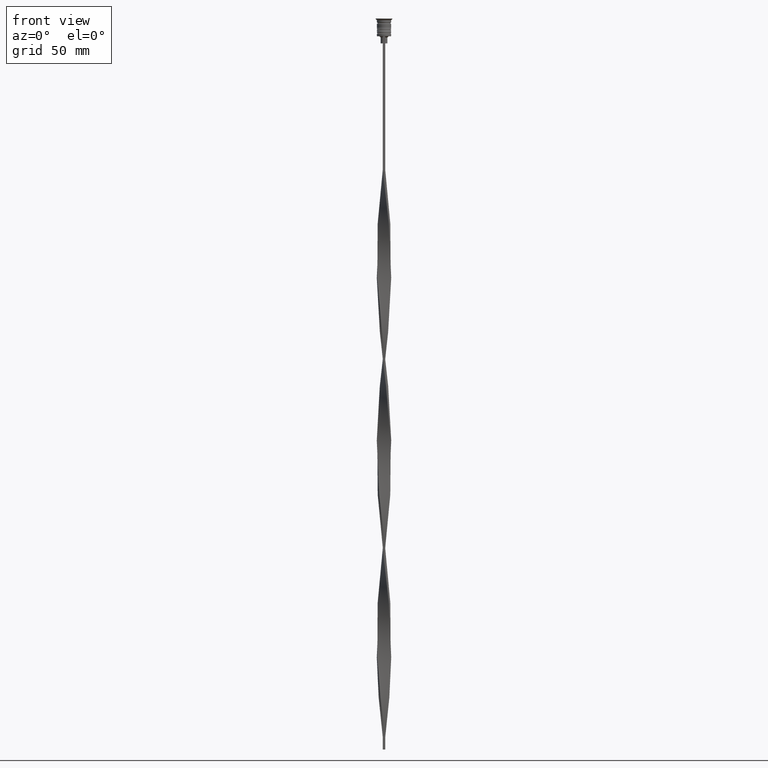
[diagram: clean part render]
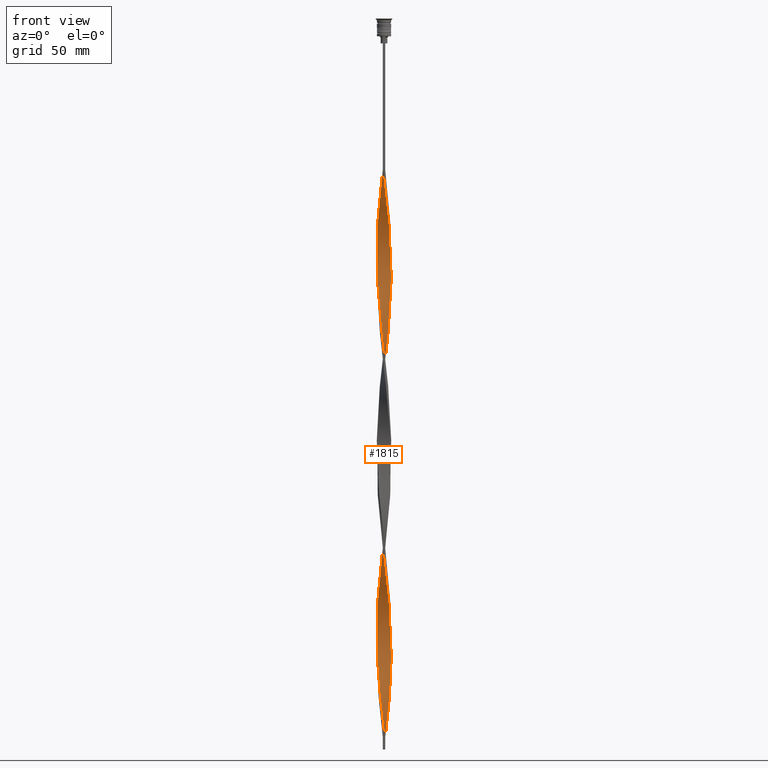
[diagram: same view with one face highlighted and labeled with its STEP entity id]
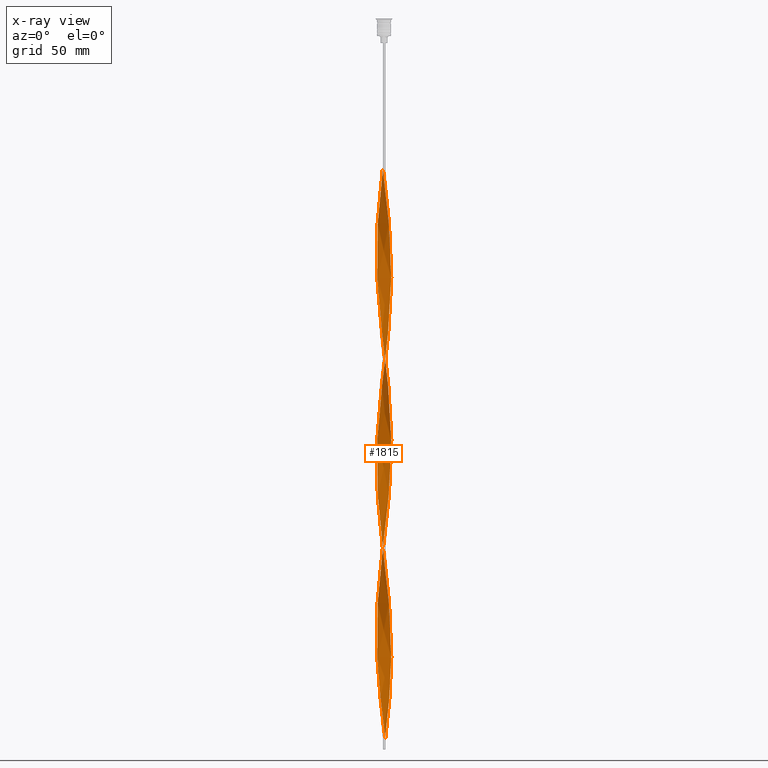
[diagram: x-ray of the same camera — body ghosted, the highlighted face saturated]
A machine part, front view. The second image highlights one B-rep face of the part: STEP entity #1815.
The next image is the same camera in x-ray: the body ghosted, the highlighted face saturated — about 0% of this face is hidden behind the body in this view.
In plain terms, the highlighted face is a freeform B-spline surface patch.
Its self-contained STEP definition (entity closure, byte-faithful):
#2 = CARTESIAN_POINT ( 'NONE',  ( 0.2638948795261451541, 3.039350853412309039, -145.1583333333333314 ) ) ;
#11 = CARTESIAN_POINT ( 'NONE',  ( -2.335747457686308870, 1.962543740019620397, -240.7583333333333826 ) ) ;
#23 = CARTESIAN_POINT ( 'NONE',  ( -2.884847789265297724, -0.9631475654182615198, -107.3166666666666771 ) ) ;
#25 = CARTESIAN_POINT ( 'NONE',  ( -2.614000010619524250, -1.572990165913118465, -200.9250000000000682 ) ) ;
#37 = CARTESIAN_POINT ( 'NONE',  ( 0.9164682371244560199, -2.900014822434877182, -75.45000000000000284 ) ) ;
#45 = CARTESIAN_POINT ( 'NONE',  ( -2.809046431942904931, -1.190190010362667694, -109.3083333333333371 ) ) ;
#47 = CARTESIAN_POINT ( 'NONE',  ( 2.972142436947121436, 0.6882321207821385789, -113.2916666666666856 ) ) ;
#54 = CARTESIAN_POINT ( 'NONE',  ( 2.960649146587690961, -0.7361051204738556786, -101.3416666666666828 ) ) ;
#62 = CARTESIAN_POINT ( 'NONE',  ( 3.039350853412309483, 0.2638948795261428781, -181.0083333333333258 ) ) ;
#64 = CARTESIAN_POINT ( 'NONE',  ( -1.190190010362667250, -2.809046431942904931, -216.8583333333333769 ) ) ;
#70 = CARTESIAN_POINT ( 'NONE',  ( 1.767766952966369098, -2.474873734152916782, -83.41666666666667140 ) ) ;
#81 = CARTESIAN_POINT ( 'NONE',  ( -1.999981050443478514, 2.303772973937591839, -236.7750000000000341 ) ) ;
#84 = CARTESIAN_POINT ( 'NONE',  ( -1.962543740019619731, 2.335747457686310202, -165.0749999999999886 ) ) ;
#93 = CARTESIAN_POINT ( 'NONE',  ( 1.807474761312824807, 2.446024322695329989, -131.2166666666666686 ) ) ;
#101 = CARTESIAN_POINT ( 'NONE',  ( -2.614000010619525138, 1.572990165913118021, -244.7416666666667027 ) ) ;
#103 = CARTESIAN_POINT ( 'NONE',  ( 0.2148133291723920146, -3.043213655198747869, -228.8083333333333655 ) ) ;
#111 = CARTESIAN_POINT ( 'NONE',  ( 1.190190010362667916, 2.809046431942904931, -137.1916666666666913 ) ) ;
#119 = CARTESIAN_POINT ( 'NONE',  ( 1.190190010362667472, -2.809046431942904931, -149.1416666666667084 ) ) ;
#130 = CARTESIAN_POINT ( 'NONE',  ( -3.043213655198748313, -0.2148133291723901273, -188.9750000000000227 ) ) ;
#139 = CARTESIAN_POINT ( 'NONE',  ( 2.446024322695330877, 1.807474761312824141, -194.9500000000000171 ) ) ;
#152 = CARTESIAN_POINT ( 'NONE',  ( -2.474873734152917226, -1.767766952966368210, -202.9166666666666572 ) ) ;
#159 = CARTESIAN_POINT ( 'NONE',  ( 1.614968472182170656, -2.588275671453069471, -153.1250000000000000 ) ) ;
#172 = CARTESIAN_POINT ( 'NONE',  ( 2.809046431942904931, -1.190190010362667916, -256.6916666666666629 ) ) ;
#176 = CARTESIAN_POINT ( 'NONE',  ( -2.335747457686308870, 1.962543740019620397, -81.42500000000001137 ) ) ;
#189 = CARTESIAN_POINT ( 'NONE',  ( -0.2148133291723916816, 3.043213655198747869, -149.1416666666667084 ) ) ;
#193 = CARTESIAN_POINT ( 'NONE',  ( 0.02454077517687595564, -3.041282254305528010, -139.1833333333333371 ) ) ;
#196 = CARTESIAN_POINT ( 'NONE',  ( -1.962543740019620175, -2.335747457686308426, -280.5916666666666401 ) ) ;
#211 = CARTESIAN_POINT ( 'NONE',  ( -1.358847259689945242, 2.720943609271079033, -159.1000000000000227 ) ) ;
#217 = CARTESIAN_POINT ( 'NONE',  ( -1.402579241272419175, 2.698661051697986757, -71.46666666666666856 ) ) ;
#231 = ORIENTED_EDGE ( 'NONE', *, *, #2615, .F. ) ;
#238 = CARTESIAN_POINT ( 'NONE',  ( -2.698661051697987201, -1.402579241272419175, -111.3000000000000114 ) ) ;
#246 = CARTESIAN_POINT ( 'NONE',  ( -0.5000000000000001110, -3.000000000000000000, -63.50000000000000000 ) ) ;
#258 = CARTESIAN_POINT ( 'NONE',  ( 1.358847259689946352, 2.720943609271079033, -206.9000000000000057 ) ) ;
#264 = CARTESIAN_POINT ( 'NONE',  ( 2.698661051697986757, -1.402579241272419397, -254.7000000000000455 ) ) ;
#266 = FACE_OUTER_BOUND ( 'NONE', #926, .T. ) ;
#277 = CARTESIAN_POINT ( 'NONE',  ( 0.2148133291723913485, 3.043213655198747869, -216.8583333333333769 ) ) ;
#288 = CARTESIAN_POINT ( 'NONE',  ( 0.5000000000000004441, 3.000000000000000000, -302.5000000000000000 ) ) ;
#295 = CARTESIAN_POINT ( 'NONE',  ( 3.007678046072934652, 0.4515227249772650886, -270.6333333333333258 ) ) ;
#299 = CARTESIAN_POINT ( 'NONE',  ( -1.767766952966369098, -2.474873734152916338, -282.5833333333333712 ) ) ;
#307 = CARTESIAN_POINT ( 'NONE',  ( -1.358847259689946130, -2.720943609271079033, -127.2333333333333343 ) ) ;
#309 = CARTESIAN_POINT ( 'NONE',  ( 2.474873734152916782, 1.767766952966368654, -123.2500000000000000 ) ) ;
#316 = CARTESIAN_POINT ( 'NONE',  ( -0.2148133291723924865, -3.043213655198747869, -296.5250000000000341 ) ) ;
#324 = CARTESIAN_POINT ( 'NONE',  ( 2.614000010619525138, 1.572990165913117577, -280.5916666666666401 ) ) ;
#326 = CARTESIAN_POINT ( 'NONE',  ( 3.039350853412309039, -0.2638948795261449320, -105.3249999999999886 ) ) ;
#346 = CARTESIAN_POINT ( 'NONE',  ( -2.972142436947121436, 0.6882321207821388009, -93.37500000000001421 ) ) ;
#348 = CARTESIAN_POINT ( 'NONE',  ( -2.446024322695329989, 1.807474761312824807, -171.0500000000000114 ) ) ;
#367 = CARTESIAN_POINT ( 'NONE',  ( -0.4515227249772655882, -3.007678046072934208, -135.1999999999999886 ) ) ;
#368 = CARTESIAN_POINT ( 'NONE',  ( 2.900014822434877182, 0.9164682371244560199, -115.2833333333333314 ) ) ;
#375 = CARTESIAN_POINT ( 'NONE',  ( 1.144704353466773794, -2.827887207922633817, -77.44166666666669130 ) ) ;
#383 = CARTESIAN_POINT ( 'NONE',  ( -1.614968472182171100, 2.588275671453069027, -232.7916666666666572 ) ) ;
#385 = CARTESIAN_POINT ( 'NONE',  ( -3.041282254305528454, 0.02454077517687698606, -186.9833333333333485 ) ) ;
#391 = CARTESIAN_POINT ( 'NONE',  ( 2.167864254064893359, 2.133158356978605230, -127.2333333333333343 ) ) ;
#399 = CARTESIAN_POINT ( 'NONE',  ( 3.043213655198747869, -0.2148133291723912652, -177.0250000000000341 ) ) ;
#402 = CARTESIAN_POINT ( 'NONE',  ( 1.144704353466773572, -2.827887207922633817, -236.7750000000000341 ) ) ;
#420 = CARTESIAN_POINT ( 'NONE',  ( 1.999981050443478070, -2.303772973937591839, -157.1083333333334053 ) ) ;
#428 = CARTESIAN_POINT ( 'NONE',  ( -2.133158356978605230, 2.167864254064893359, -167.0666666666666629 ) ) ;
#436 = CARTESIAN_POINT ( 'NONE',  ( 2.827887207922633372, -1.144704353466772906, -169.0583333333333655 ) ) ;
#445 = CARTESIAN_POINT ( 'NONE',  ( -0.5000000000000001110, -3.000000000000000000, -63.50000000000000000 ) ) ;
#448 = CARTESIAN_POINT ( 'NONE',  ( 2.303772973937590951, -1.999981050443478958, -248.7250000000000227 ) ) ;
#453 = CARTESIAN_POINT ( 'NONE',  ( -0.9164682371244565751, -2.900014822434876738, -131.2166666666666686 ) ) ;
#471 = CARTESIAN_POINT ( 'NONE',  ( -2.698661051697986757, 1.402579241272419619, -175.0333333333333599 ) ) ;
#476 = CARTESIAN_POINT ( 'NONE',  ( -2.614000010619525138, 1.572990165913117799, -85.40833333333333144 ) ) ;
#490 = CARTESIAN_POINT ( 'NONE',  ( -1.614968472182172432, -2.588275671453068139, -212.8750000000000000 ) ) ;
#495 = CARTESIAN_POINT ( 'NONE',  ( -1.999981050443478514, 2.303772973937591395, -77.44166666666669130 ) ) ;
#500 = CARTESIAN_POINT ( 'NONE',  ( -2.884847789265297724, -0.9631475654182615198, -266.6499999999999773 ) ) ;
#509 = CARTESIAN_POINT ( 'NONE',  ( -1.402579241272419841, -2.698661051697986757, -214.8666666666666742 ) ) ;
#513 = CARTESIAN_POINT ( 'NONE',  ( -1.614968472182171100, 2.588275671453069027, -73.45833333333334281 ) ) ;
#531 = CARTESIAN_POINT ( 'NONE',  ( 1.614968472182171322, 2.588275671453069027, -292.5416666666666856 ) ) ;
#537 = CARTESIAN_POINT ( 'NONE',  ( -0.9631475654182616308, 2.884847789265297724, -67.48333333333333428 ) ) ;
#550 = CARTESIAN_POINT ( 'NONE',  ( 1.767766952966369098, -2.474873734152916782, -83.41666666666667140 ) ) ;
#560 = CARTESIAN_POINT ( 'NONE',  ( -1.962543740019620397, -2.335747457686308426, -280.5916666666666970 ) ) ;
#577 = CARTESIAN_POINT ( 'NONE',  ( -3.043213655198747869, 0.2148133291723922644, -256.6916666666666629 ) ) ;
#583 = CARTESIAN_POINT ( 'NONE',  ( 2.167864254064893359, 2.133158356978605230, -286.5666666666667197 ) ) ;
#598 = CARTESIAN_POINT ( 'NONE',  ( 2.446024322695330877, 1.807474761312824141, -194.9500000000000171 ) ) ;
#608 = CARTESIAN_POINT ( 'NONE',  ( -1.807474761312824363, 2.446024322695330433, -75.45000000000000284 ) ) ;
#618 = CARTESIAN_POINT ( 'NONE',  ( -3.007678046072934208, 0.4515227249772654772, -254.7000000000000455 ) ) ;
#629 = CARTESIAN_POINT ( 'NONE',  ( 2.133158356978606118, -2.167864254064893359, -246.7333333333333201 ) ) ;
#631 = CARTESIAN_POINT ( 'NONE',  ( -2.884847789265297280, 0.9631475654182620749, -179.0166666666666515 ) ) ;
#646 = CARTESIAN_POINT ( 'NONE',  ( 2.303772973937591395, -1.999981050443478958, -248.7250000000000227 ) ) ;
#648 = CARTESIAN_POINT ( 'NONE',  ( 2.827887207922633817, 1.144704353466773572, -117.2750000000000199 ) ) ;
#655 = CARTESIAN_POINT ( 'NONE',  ( 2.698661051697986757, -1.402579241272419397, -95.36666666666667425 ) ) ;
#667 = CARTESIAN_POINT ( 'NONE',  ( 1.190190010362667916, 2.809046431942904931, -296.5250000000000341 ) ) ;
#669 = CARTESIAN_POINT ( 'NONE',  ( -2.827887207922633817, -1.144704353466772240, -196.9416666666667197 ) ) ;
#679 = CARTESIAN_POINT ( 'NONE',  ( 0.2148133291723920424, -3.043213655198747869, -69.47499999999999432 ) ) ;
#686 = CARTESIAN_POINT ( 'NONE',  ( -1.402579241272419175, 2.698661051697986757, -230.8000000000000114 ) ) ;
#688 = CARTESIAN_POINT ( 'NONE',  ( 1.402579241272419397, 2.698661051697986757, -135.1999999999999886 ) ) ;
#703 = CARTESIAN_POINT ( 'NONE',  ( 1.402579241272418953, -2.698661051697987201, -151.1333333333333542 ) ) ;
#705 = CARTESIAN_POINT ( 'NONE',  ( 3.043213655198747869, 0.2148133291723917371, -109.3083333333333371 ) ) ;
#711 = CARTESIAN_POINT ( 'NONE',  ( 1.402579241272419397, 2.698661051697986757, -135.1999999999999886 ) ) ;
#721 = CARTESIAN_POINT ( 'NONE',  ( -3.043213655198747869, 0.2148133291723922367, -256.6916666666666629 ) ) ;
#724 = CARTESIAN_POINT ( 'NONE',  ( -0.2638948795261447655, -3.039350853412309039, -224.8250000000000171 ) ) ;
#745 = CARTESIAN_POINT ( 'NONE',  ( -0.02454077517687562951, 3.041282254305528010, -218.8500000000000227 ) ) ;
#753 = CARTESIAN_POINT ( 'NONE',  ( 1.572990165913117799, -2.614000010619525138, -240.7583333333333826 ) ) ;
#758 = CARTESIAN_POINT ( 'NONE',  ( 0.2638948795261443769, -3.039350853412309483, -141.1749999999999829 ) ) ;
#761 = CARTESIAN_POINT ( 'NONE',  ( 2.335747457686308426, -1.962543740019620619, -161.0916666666666970 ) ) ;
#770 = CARTESIAN_POINT ( 'NONE',  ( -3.000000000000000000, 0.5000000000000006661, -183.0000000000000000 ) ) ;
#775 = CARTESIAN_POINT ( 'NONE',  ( 2.827887207922633372, -1.144704353466773128, -169.0583333333333655 ) ) ;
#794 = CARTESIAN_POINT ( 'NONE',  ( -3.039350853412309483, 0.2638948795261439328, -184.9916666666666742 ) ) ;
#799 = CARTESIAN_POINT ( 'NONE',  ( 3.000000000000000000, 0.4999999999999995559, -183.0000000000000000 ) ) ;
#812 = CARTESIAN_POINT ( 'NONE',  ( -0.9631475654182622970, -2.884847789265297280, -218.8500000000000227 ) ) ;
#817 = CARTESIAN_POINT ( 'NONE',  ( 3.041282254305528010, 0.02454077517687579257, -179.0166666666666515 ) ) ;
#826 = DIRECTION ( 'NONE',  ( 0.000000000000000000, 1.000000000000000000, 0.000000000000000000 ) ) ;
#830 = CARTESIAN_POINT ( 'NONE',  ( -3.041282254305528454, 0.02454077517687698606, -186.9833333333333485 ) ) ;
#834 = CARTESIAN_POINT ( 'NONE',  ( -2.960649146587690961, -0.7361051204738553455, -105.3250000000000028 ) ) ;
#848 = CARTESIAN_POINT ( 'NONE',  ( 1.358847259689945686, -2.720943609271079033, -79.43333333333332291 ) ) ;
#853 = CARTESIAN_POINT ( 'NONE',  ( 2.900014822434877182, 0.9164682371244560199, -274.6166666666666742 ) ) ;
#859 = CARTESIAN_POINT ( 'NONE',  ( -0.02454077517687562951, 3.041282254305528010, -218.8500000000000227 ) ) ;
#869 = CARTESIAN_POINT ( 'NONE',  ( 1.144704353466773572, -2.827887207922633817, -77.44166666666669130 ) ) ;
#877 = CARTESIAN_POINT ( 'NONE',  ( -1.402579241272419175, 2.698661051697986757, -230.8000000000000114 ) ) ;
#883 = CARTESIAN_POINT ( 'NONE',  ( 2.588275671453069027, -1.614968472182171100, -252.7083333333332860 ) ) ;
#894 = CARTESIAN_POINT ( 'NONE',  ( -0.6882321207821390230, -2.972142436947121436, -292.5416666666666856 ) ) ;
#903 = CARTESIAN_POINT ( 'NONE',  ( -2.474873734152916782, 1.767766952966369098, -83.41666666666667140 ) ) ;
#909 = CARTESIAN_POINT ( 'NONE',  ( 2.614000010619525138, 1.572990165913117577, -280.5916666666666970 ) ) ;
#917 = CARTESIAN_POINT ( 'NONE',  ( 2.588275671453068583, 1.614968472182171766, -192.9583333333333428 ) ) ;
#926 = EDGE_LOOP ( 'NONE', ( #3302, #1913, #3919, #231 ) ) ;
#928 = CARTESIAN_POINT ( 'NONE',  ( 2.884847789265297724, -0.9631475654182618529, -258.6833333333333940 ) ) ;
#931 = CARTESIAN_POINT ( 'NONE',  ( -0.9164682371244557979, 2.900014822434877182, -155.1166666666666742 ) ) ;
#945 = CARTESIAN_POINT ( 'NONE',  ( 2.972142436947121436, 0.6882321207821385789, -272.6250000000000568 ) ) ;
#947 = CARTESIAN_POINT ( 'NONE',  ( 2.335747457686308870, 1.962543740019620175, -125.2416666666667027 ) ) ;
#953 = CARTESIAN_POINT ( 'NONE',  ( -0.02454077517687638932, -3.041282254305528454, -67.48333333333333428 ) ) ;
#963 = CARTESIAN_POINT ( 'NONE',  ( 2.827887207922633817, 1.144704353466773572, -276.6083333333332916 ) ) ;
#965 = CARTESIAN_POINT ( 'NONE',  ( -2.474873734152917226, -1.767766952966368210, -202.9166666666666572 ) ) ;
#983 = CARTESIAN_POINT ( 'NONE',  ( 1.572990165913119576, 2.614000010619524250, -204.9083333333333599 ) ) ;
#985 = CARTESIAN_POINT ( 'NONE',  ( 0.02454077517687682300, 3.041282254305528454, -147.1500000000000057 ) ) ;
#1001 = CARTESIAN_POINT ( 'NONE',  ( 2.809046431942905375, 1.190190010362665918, -188.9750000000000512 ) ) ;
#1003 = CARTESIAN_POINT ( 'NONE',  ( 3.000000000000000000, -0.5000000000000003331, -103.3333333333333286 ) ) ;
#1010 = CARTESIAN_POINT ( 'NONE',  ( 2.900014822434877182, 0.9164682371244560199, -115.2833333333333314 ) ) ;
#1018 = CARTESIAN_POINT ( 'NONE',  ( -3.007678046072934208, 0.4515227249772654772, -254.7000000000000455 ) ) ;
#1020 = CARTESIAN_POINT ( 'NONE',  ( 1.572990165913118021, -2.614000010619525138, -240.7583333333333542 ) ) ;
#1040 = CARTESIAN_POINT ( 'NONE',  ( 2.133158356978606562, 2.167864254064892471, -198.9333333333333371 ) ) ;
#1052 = CARTESIAN_POINT ( 'NONE',  ( -1.190190010362667250, -2.809046431942904931, -216.8583333333333769 ) ) ;
#1058 = CARTESIAN_POINT ( 'NONE',  ( -0.4515227249772655882, -3.007678046072934208, -135.1999999999999886 ) ) ;
#1063 = CARTESIAN_POINT ( 'NONE',  ( 2.720943609271079033, -1.358847259689946130, -167.0666666666666629 ) ) ;
#1071 = CARTESIAN_POINT ( 'NONE',  ( 3.000000000000000000, -0.5000000000000003331, -262.6666666666667425 ) ) ;
#1075 = CARTESIAN_POINT ( 'NONE',  ( 2.167864254064892915, -2.133158356978606118, -159.1000000000000227 ) ) ;
#1079 = CARTESIAN_POINT ( 'NONE',  ( 0.2638948795261443769, -3.039350853412309039, -300.5083333333334394 ) ) ;
#1090 = CARTESIAN_POINT ( 'NONE',  ( 3.039350853412309483, -0.2638948795261449320, -264.6583333333333030 ) ) ;
#1094 = CARTESIAN_POINT ( 'NONE',  ( 3.043213655198747869, -0.2148133291723912652, -177.0250000000000057 ) ) ;
#1112 = CARTESIAN_POINT ( 'NONE',  ( -1.807474761312824807, -2.446024322695329989, -210.8833333333333258 ) ) ;
#1117 = CARTESIAN_POINT ( 'NONE',  ( -2.446024322695330433, -1.807474761312824363, -115.2833333333333314 ) ) ;
#1121 = CARTESIAN_POINT ( 'NONE',  ( -1.767766952966369098, -2.474873734152916338, -282.5833333333333712 ) ) ;
#1134 = CARTESIAN_POINT ( 'NONE',  ( -2.614000010619524250, -1.572990165913118243, -200.9250000000000398 ) ) ;
#1138 = CARTESIAN_POINT ( 'NONE',  ( -3.007678046072934208, 0.4515227249772654772, -95.36666666666667425 ) ) ;
#1155 = CARTESIAN_POINT ( 'NONE',  ( -3.039350853412309483, -0.2638948795261445990, -260.6750000000000682 ) ) ;
#1159 = CARTESIAN_POINT ( 'NONE',  ( 0.5000000000000004441, 3.000000000000000000, -302.5000000000000000 ) ) ;
#1177 = CARTESIAN_POINT ( 'NONE',  ( -1.358847259689946130, -2.720943609271079033, -286.5666666666667197 ) ) ;
#1185 =( BOUNDED_SURFACE ( )  B_SPLINE_SURFACE ( 1, 2, ( 
 ( #246, #3936, #1486, #1189, #1448, #3300, #3577, #869, #848, #2059, #550, #2398, #3618, #2416, #3636, #3432, #2517, #2216, #1265, #3734, #1003, #326, #3678, #705, #1304, #47, #368, #648, #1916, #1596, #309, #947, #1899, #2198, #3416, #2176, #688, #1860, #1524, #2158, #2739, #2, #985, #1581, #2816, #3395, #931, #3117, #1284, #3656, #1224, #84, #2479, #2438, #348, #2799, #2139, #3356, #631, #1844, #3056, #1563, #385, #3376, #2499, #1541, #2760, #669, #3697, #25, #965, #1884, #1247, #2461, #3099, #3076, #2780, #64, #3716, #1618, #2837, #724, #2534, #103, #3451, #3136, #1321, #402, #3751, #1020, #2232, #3616, #629, #646, #2737, #883, #264, #1222, #928, #1505, #1522, #2435, #3354, #1187, #1484, #945, #3676, #963, #1539, #324, #2094, #3314, #583, #3014, #2459, #3374, #1244, #667, #2414, #1799, #288 ),
 ( #2721, #3634, #2477, #1263, #3951, #2757, #608, #2174, #1561, #3392, #903, #1858, #2156, #3073, #2137, #346, #1824, #1882, #2113, #2701, #3915, #2778, #23, #45, #1842, #3934, #3695, #2396, #1203, #3336, #3035, #3654, #307, #3054, #1634, #1652, #367, #1579, #2797, #3492, #3133, #2869, #2850, #119, #703, #3767, #1594, #420, #2230, #761, #3115, #1897, #1063, #436, #3158, #3714, #3414, #399, #1938, #62, #3097, #2276, #1957, #1001, #1337, #2552, #139, #2496, #1040, #2515, #1282, #983, #2255, #2196, #3174, #1914, #1616, #3474, #745, #1360, #3448, #2576, #2214, #3430, #686, #383, #2813, #81, #3793, #2835, #1302, #101, #3732, #1319, #2532, #3749, #1018, #721, #3234, #1383, #2331, #2350, #500, #2595, #1975, #2928, #2634, #3215, #1712, #196, #1121, #2891, #3193, #2656, #1441, #2677, #3251, #2031, #3810, #1079, #2291 ) ),
 .UNSPECIFIED., .F., .F., .F. ) 
 B_SPLINE_SURFACE_WITH_KNOTS ( ( 2, 2 ),
 ( 3, 2, 2, 2, 2, 2, 2, 2, 2, 2, 2, 2, 2, 2, 2, 2, 2, 2, 2, 2, 2, 2, 2, 2, 2, 2, 2, 2, 2, 2, 2, 2, 2, 2, 2, 2, 2, 2, 2, 2, 2, 2, 2, 2, 2, 2, 2, 2, 2, 2, 2, 2, 2, 2, 2, 2, 2, 2, 2, 2, 3 ),
 ( 0.000000000000000000, 1.000000000000000000 ),
 ( 0.000000000000000000, 0.01250000000000000069, 0.02500000000000000139, 0.03749999999999999861, 0.05000000000000000278, 0.06250000000000000000, 0.07499999999999999722, 0.08749999999999999445, 0.1000000000000000056, 0.1125000000000000028, 0.1250000000000000000, 0.1375000000000000111, 0.1499999999999999944, 0.1625000000000000056, 0.1749999999999999889, 0.1875000000000000000, 0.2000000000000000111, 0.2124999999999999944, 0.2250000000000000056, 0.2374999999999999889, 0.2500000000000000000, 0.2625000000000000111, 0.2750000000000000222, 0.2874999999999999778, 0.2999999999999999889, 0.3125000000000000000, 0.3250000000000000111, 0.3375000000000000222, 0.3499999999999999778, 0.3624999999999999889, 0.3750000000000000000, 0.3875000000000000111, 0.4000000000000000222, 0.4124999999999999778, 0.4249999999999999889, 0.4375000000000000000, 0.4500000000000000111, 0.4625000000000000222, 0.4749999999999999778, 0.4874999999999999889, 0.5000000000000000000, 0.5124999999999999556, 0.5250000000000000222, 0.5374999999999999778, 0.5500000000000000444, 0.5625000000000000000, 0.5749999999999999556, 0.5875000000000000222, 0.5999999999999999778, 0.6125000000000000444, 0.6250000000000000000, 0.6374999999999999556, 0.6500000000000000222, 0.6624999999999999778, 0.6750000000000000444, 0.6875000000000000000, 0.6999999999999999556, 0.7125000000000000222, 0.7249999999999999778, 0.7375000000000000444, 0.7500000000000000000 ),
 .UNSPECIFIED. ) 
 GEOMETRIC_REPRESENTATION_ITEM ( )  RATIONAL_B_SPLINE_SURFACE ( (
 ( 1.000000000000000000, 0.9969173337331279638, 1.000000000000000000, 0.9969173337331279638, 1.000000000000000000, 0.9969173337331279638, 1.000000000000000000, 0.9969173337331279638, 1.000000000000000000, 0.9969173337331279638, 1.000000000000000000, 0.9969173337331279638, 1.000000000000000000, 0.9969173337331279638, 1.000000000000000000, 0.9969173337331279638, 1.000000000000000000, 0.9969173337331279638, 1.000000000000000000, 0.9969173337331279638, 1.000000000000000000, 0.9969173337331279638, 1.000000000000000000, 0.9969173337331279638, 1.000000000000000000, 0.9969173337331279638, 1.000000000000000000, 0.9969173337331279638, 1.000000000000000000, 0.9969173337331279638, 1.000000000000000000, 0.9969173337331279638, 1.000000000000000000, 0.9969173337331279638, 1.000000000000000000, 0.9969173337331279638, 1.000000000000000000, 0.9969173337331279638, 1.000000000000000000, 0.9969173337331279638, 1.000000000000000000, 0.9969173337331279638, 1.000000000000000000, 0.9969173337331279638, 1.000000000000000000, 0.9969173337331279638, 1.000000000000000000, 0.9969173337331279638, 1.000000000000000000, 0.9969173337331279638, 1.000000000000000000, 0.9969173337331279638, 1.000000000000000000, 0.9969173337331279638, 1.000000000000000000, 0.9969173337331279638, 1.000000000000000000, 0.9969173337331279638, 1.000000000000000000, 0.9969173337331279638, 1.000000000000000000, 0.9969173337331279638, 1.000000000000000000, 0.9969173337331279638, 1.000000000000000000, 0.9969173337331279638, 1.000000000000000000, 0.9969173337331279638, 1.000000000000000000, 0.9969173337331279638, 1.000000000000000000, 0.9969173337331279638, 1.000000000000000000, 0.9969173337331279638, 1.000000000000000000, 0.9969173337331279638, 1.000000000000000000, 0.9969173337331279638, 1.000000000000000000, 0.9969173337331279638, 1.000000000000000000, 0.9969173337331279638, 1.000000000000000000, 0.9969173337331279638, 1.000000000000000000, 0.9969173337331279638, 1.000000000000000000, 0.9969173337331279638, 1.000000000000000000, 0.9969173337331279638, 1.000000000000000000, 0.9969173337331279638, 1.000000000000000000, 0.9969173337331279638, 1.000000000000000000, 0.9969173337331279638, 1.000000000000000000, 0.9969173337331279638, 1.000000000000000000, 0.9969173337331279638, 1.000000000000000000, 0.9969173337331279638, 1.000000000000000000, 0.9969173337331279638, 1.000000000000000000, 0.9969173337331279638, 1.000000000000000000, 0.9969173337331279638, 1.000000000000000000, 0.9969173337331279638, 1.000000000000000000, 0.9969173337331279638, 1.000000000000000000, 0.9969173337331279638, 1.000000000000000000, 0.9969173337331279638, 1.000000000000000000, 0.9969173337331279638, 1.000000000000000000, 0.9969173337331279638, 1.000000000000000000),
 ( 1.000000000000000000, 0.9969173337331279638, 1.000000000000000000, 0.9969173337331279638, 1.000000000000000000, 0.9969173337331279638, 1.000000000000000000, 0.9969173337331279638, 1.000000000000000000, 0.9969173337331279638, 1.000000000000000000, 0.9969173337331279638, 1.000000000000000000, 0.9969173337331279638, 1.000000000000000000, 0.9969173337331279638, 1.000000000000000000, 0.9969173337331279638, 1.000000000000000000, 0.9969173337331279638, 1.000000000000000000, 0.9969173337331279638, 1.000000000000000000, 0.9969173337331279638, 1.000000000000000000, 0.9969173337331279638, 1.000000000000000000, 0.9969173337331279638, 1.000000000000000000, 0.9969173337331279638, 1.000000000000000000, 0.9969173337331279638, 1.000000000000000000, 0.9969173337331279638, 1.000000000000000000, 0.9969173337331279638, 1.000000000000000000, 0.9969173337331279638, 1.000000000000000000, 0.9969173337331279638, 1.000000000000000000, 0.9969173337331279638, 1.000000000000000000, 0.9969173337331279638, 1.000000000000000000, 0.9969173337331279638, 1.000000000000000000, 0.9969173337331279638, 1.000000000000000000, 0.9969173337331279638, 1.000000000000000000, 0.9969173337331279638, 1.000000000000000000, 0.9969173337331279638, 1.000000000000000000, 0.9969173337331279638, 1.000000000000000000, 0.9969173337331279638, 1.000000000000000000, 0.9969173337331279638, 1.000000000000000000, 0.9969173337331279638, 1.000000000000000000, 0.9969173337331279638, 1.000000000000000000, 0.9969173337331279638, 1.000000000000000000, 0.9969173337331279638, 1.000000000000000000, 0.9969173337331279638, 1.000000000000000000, 0.9969173337331279638, 1.000000000000000000, 0.9969173337331279638, 1.000000000000000000, 0.9969173337331279638, 1.000000000000000000, 0.9969173337331279638, 1.000000000000000000, 0.9969173337331279638, 1.000000000000000000, 0.9969173337331279638, 1.000000000000000000, 0.9969173337331279638, 1.000000000000000000, 0.9969173337331279638, 1.000000000000000000, 0.9969173337331279638, 1.000000000000000000, 0.9969173337331279638, 1.000000000000000000, 0.9969173337331279638, 1.000000000000000000, 0.9969173337331279638, 1.000000000000000000, 0.9969173337331279638, 1.000000000000000000, 0.9969173337331279638, 1.000000000000000000, 0.9969173337331279638, 1.000000000000000000, 0.9969173337331279638, 1.000000000000000000, 0.9969173337331279638, 1.000000000000000000, 0.9969173337331279638, 1.000000000000000000, 0.9969173337331279638, 1.000000000000000000, 0.9969173337331279638, 1.000000000000000000, 0.9969173337331279638, 1.000000000000000000, 0.9969173337331279638, 1.000000000000000000, 0.9969173337331279638, 1.000000000000000000, 0.9969173337331279638, 1.000000000000000000, 0.9969173337331279638, 1.000000000000000000) ) ) 
 REPRESENTATION_ITEM ( '' )  SURFACE ( )  );
#1187 = CARTESIAN_POINT ( 'NONE',  ( 3.043213655198747869, 0.2148133291723917371, -268.6416666666666515 ) ) ;
#1189 = CARTESIAN_POINT ( 'NONE',  ( 0.2148133291723920146, -3.043213655198747869, -69.47499999999999432 ) ) ;
#1197 = CARTESIAN_POINT ( 'NONE',  ( -2.588275671453069027, -1.614968472182170878, -272.6250000000000568 ) ) ;
#1203 = CARTESIAN_POINT ( 'NONE',  ( -2.133158356978606118, -2.167864254064892915, -119.2666666666666799 ) ) ;
#1222 = CARTESIAN_POINT ( 'NONE',  ( 2.809046431942904931, -1.190190010362667916, -256.6916666666666629 ) ) ;
#1224 = CARTESIAN_POINT ( 'NONE',  ( -1.767766952966368654, 2.474873734152917226, -163.0833333333333712 ) ) ;
#1230 = CARTESIAN_POINT ( 'NONE',  ( 2.335747457686308870, 1.962543740019620397, -284.5750000000001023 ) ) ;
#1236 = CARTESIAN_POINT ( 'NONE',  ( -2.446024322695330433, -1.807474761312824363, -274.6166666666666742 ) ) ;
#1244 = CARTESIAN_POINT ( 'NONE',  ( 1.402579241272419397, 2.698661051697986757, -294.5333333333333030 ) ) ;
#1247 = CARTESIAN_POINT ( 'NONE',  ( -2.167864254064893803, -2.133158356978605230, -206.9000000000000057 ) ) ;
#1254 = CARTESIAN_POINT ( 'NONE',  ( 2.303772973937590951, -1.999981050443478958, -89.39166666666667993 ) ) ;
#1263 = CARTESIAN_POINT ( 'NONE',  ( -1.190190010362667694, 2.809046431942904931, -69.47499999999999432 ) ) ;
#1265 = CARTESIAN_POINT ( 'NONE',  ( 2.884847789265297724, -0.9631475654182618529, -99.34999999999999432 ) ) ;
#1273 = CARTESIAN_POINT ( 'NONE',  ( 3.007678046072934652, 0.4515227249772650886, -111.3000000000000114 ) ) ;
#1282 = CARTESIAN_POINT ( 'NONE',  ( 1.767766952966369542, 2.474873734152915894, -202.9166666666666572 ) ) ;
#1284 = CARTESIAN_POINT ( 'NONE',  ( -1.358847259689945242, 2.720943609271079033, -159.1000000000000227 ) ) ;
#1291 = CARTESIAN_POINT ( 'NONE',  ( 2.446024322695329989, -1.807474761312824363, -91.38333333333333997 ) ) ;
#1302 = CARTESIAN_POINT ( 'NONE',  ( -2.474873734152916782, 1.767766952966369098, -242.7500000000000284 ) ) ;
#1304 = CARTESIAN_POINT ( 'NONE',  ( 3.007678046072934652, 0.4515227249772650886, -111.3000000000000114 ) ) ;
#1319 = CARTESIAN_POINT ( 'NONE',  ( -2.827887207922633372, 1.144704353466773794, -248.7250000000000227 ) ) ;
#1321 = CARTESIAN_POINT ( 'NONE',  ( 0.9164682371244560199, -2.900014822434877182, -234.7833333333333314 ) ) ;
#1329 = CARTESIAN_POINT ( 'NONE',  ( 3.000000000000000000, -0.5000000000000003331, -103.3333333333333286 ) ) ;
#1337 = CARTESIAN_POINT ( 'NONE',  ( 2.698661051697987201, 1.402579241272418731, -190.9666666666666686 ) ) ;
#1349 = CARTESIAN_POINT ( 'NONE',  ( -0.5000000000000001110, -3.000000000000000000, -222.8333333333333144 ) ) ;
#1360 = CARTESIAN_POINT ( 'NONE',  ( -0.2638948795261427116, 3.039350853412309483, -220.8416666666666970 ) ) ;
#1372 = CARTESIAN_POINT ( 'NONE',  ( 2.884847789265297724, -0.9631475654182618529, -258.6833333333333940 ) ) ;
#1378 = CARTESIAN_POINT ( 'NONE',  ( 1.190190010362667472, -2.809046431942904931, -149.1416666666667084 ) ) ;
#1383 = CARTESIAN_POINT ( 'NONE',  ( -3.039350853412309039, -0.2638948795261445990, -260.6750000000000682 ) ) ;
#1392 = CARTESIAN_POINT ( 'NONE',  ( -1.144704353466773350, 2.827887207922633817, -157.1083333333333769 ) ) ;
#1396 = CARTESIAN_POINT ( 'NONE',  ( 2.972142436947120547, -0.6882321207821405773, -173.0416666666666856 ) ) ;
#1409 = CARTESIAN_POINT ( 'NONE',  ( -2.960649146587690517, 0.7361051204738573439, -181.0083333333333258 ) ) ;
#1413 = CARTESIAN_POINT ( 'NONE',  ( 2.474873734152916338, -1.767766952966369542, -163.0833333333333712 ) ) ;
#1432 = CARTESIAN_POINT ( 'NONE',  ( -2.809046431942904931, 1.190190010362667028, -177.0250000000000057 ) ) ;
#1437 = CARTESIAN_POINT ( 'NONE',  ( -3.039350853412309483, -0.2638948795261445990, -101.3416666666666828 ) ) ;
#1441 = CARTESIAN_POINT ( 'NONE',  ( -0.9164682371244565751, -2.900014822434876738, -290.5499999999999545 ) ) ;
#1448 = CARTESIAN_POINT ( 'NONE',  ( 0.4515227249772652551, -3.007678046072934208, -71.46666666666666856 ) ) ;
#1458 = CARTESIAN_POINT ( 'NONE',  ( -1.807474761312824363, 2.446024322695330433, -234.7833333333333314 ) ) ;
#1477 = CARTESIAN_POINT ( 'NONE',  ( -0.2638948795261426561, 3.039350853412309483, -220.8416666666667254 ) ) ;
#1484 = CARTESIAN_POINT ( 'NONE',  ( 3.007678046072934652, 0.4515227249772650886, -270.6333333333333258 ) ) ;
#1486 = CARTESIAN_POINT ( 'NONE',  ( -0.02454077517687638932, -3.041282254305528454, -67.48333333333333428 ) ) ;
#1496 = CARTESIAN_POINT ( 'NONE',  ( -2.474873734152916782, 1.767766952966369098, -242.7500000000000284 ) ) ;
#1504 = VERTEX_POINT ( 'NONE', #445 ) ;
#1505 = CARTESIAN_POINT ( 'NONE',  ( 2.960649146587690517, -0.7361051204738555676, -260.6750000000000682 ) ) ;
#1507 = CARTESIAN_POINT ( 'NONE',  ( 0.5000000000000004441, 3.000000000000000000, -302.5000000000000000 ) ) ;
#1522 = CARTESIAN_POINT ( 'NONE',  ( 3.000000000000000000, -0.5000000000000003331, -262.6666666666667425 ) ) ;
#1524 = CARTESIAN_POINT ( 'NONE',  ( 0.9631475654182618529, 2.884847789265297280, -139.1833333333333371 ) ) ;
#1531 = CARTESIAN_POINT ( 'NONE',  ( 0.9164682371244567971, 2.900014822434876738, -210.8833333333333258 ) ) ;
#1539 = CARTESIAN_POINT ( 'NONE',  ( 2.720943609271079033, 1.358847259689945242, -278.6000000000000227 ) ) ;
#1541 = CARTESIAN_POINT ( 'NONE',  ( -2.972142436947120991, -0.6882321207821395781, -192.9583333333333428 ) ) ;
#1551 = CARTESIAN_POINT ( 'NONE',  ( 0.4515227249772652551, -3.007678046072934208, -71.46666666666666856 ) ) ;
#1561 = CARTESIAN_POINT ( 'NONE',  ( -2.167864254064893359, 2.133158356978606118, -79.43333333333332291 ) ) ;
#1563 = CARTESIAN_POINT ( 'NONE',  ( -3.039350853412309039, 0.2638948795261439328, -184.9916666666666742 ) ) ;
#1572 = CARTESIAN_POINT ( 'NONE',  ( 0.6882321207821388009, -2.972142436947121436, -73.45833333333334281 ) ) ;
#1579 = CARTESIAN_POINT ( 'NONE',  ( -0.2148133291723924587, -3.043213655198747869, -137.1916666666666913 ) ) ;
#1581 = CARTESIAN_POINT ( 'NONE',  ( -0.2148133291723916816, 3.043213655198747869, -149.1416666666667084 ) ) ;
#1587 = CARTESIAN_POINT ( 'NONE',  ( 3.039350853412309483, -0.2638948795261449320, -105.3250000000000028 ) ) ;
#1594 = CARTESIAN_POINT ( 'NONE',  ( 1.807474761312824141, -2.446024322695330433, -155.1166666666666742 ) ) ;
#1596 = CARTESIAN_POINT ( 'NONE',  ( 2.614000010619525138, 1.572990165913117577, -121.2583333333333400 ) ) ;
#1609 = CARTESIAN_POINT ( 'NONE',  ( -0.5000000000000001110, 3.000000000000000000, -63.50000000000000000 ) ) ;
#1616 = CARTESIAN_POINT ( 'NONE',  ( 0.4515227249772661433, 3.007678046072934208, -214.8666666666666742 ) ) ;
#1618 = CARTESIAN_POINT ( 'NONE',  ( -0.7361051204738575660, -2.960649146587690073, -220.8416666666666970 ) ) ;
#1626 = CARTESIAN_POINT ( 'NONE',  ( 0.9631475654182618529, 2.884847789265297280, -139.1833333333333371 ) ) ;
#1634 = CARTESIAN_POINT ( 'NONE',  ( -0.9164682371244565751, -2.900014822434876738, -131.2166666666666686 ) ) ;
#1644 = CARTESIAN_POINT ( 'NONE',  ( -2.303772973937591839, 1.999981050443478070, -169.0583333333333655 ) ) ;
#1652 = CARTESIAN_POINT ( 'NONE',  ( -0.6882321207821390230, -2.972142436947121436, -133.2083333333333144 ) ) ;
#1663 = CARTESIAN_POINT ( 'NONE',  ( -0.2638948795261447655, -3.039350853412309483, -224.8250000000000171 ) ) ;
#1669 = CARTESIAN_POINT ( 'NONE',  ( 0.7361051204738551235, -2.960649146587690961, -145.1583333333333314 ) ) ;
#1684 = CARTESIAN_POINT ( 'NONE',  ( 2.446024322695329989, -1.807474761312824363, -250.7166666666666970 ) ) ;
#1692 = CARTESIAN_POINT ( 'NONE',  ( -2.809046431942904931, -1.190190010362667472, -109.3083333333333371 ) ) ;
#1704 = CARTESIAN_POINT ( 'NONE',  ( -1.767766952966368654, 2.474873734152917226, -163.0833333333333712 ) ) ;
#1708 = CARTESIAN_POINT ( 'NONE',  ( -3.043213655198747869, 0.2148133291723922644, -97.35833333333334849 ) ) ;
#1712 = CARTESIAN_POINT ( 'NONE',  ( -2.133158356978606118, -2.167864254064892915, -278.6000000000000227 ) ) ;
#1721 = CARTESIAN_POINT ( 'NONE',  ( -1.962543740019619509, 2.335747457686310202, -165.0749999999999886 ) ) ;
#1726 = CARTESIAN_POINT ( 'NONE',  ( -1.807474761312824363, 2.446024322695330433, -75.45000000000000284 ) ) ;
#1737 = EDGE_CURVE ( 'NONE', #1504, #3633, #2356, .T. ) ;
#1753 = CARTESIAN_POINT ( 'NONE',  ( -2.474873734152916782, 1.767766952966369098, -83.41666666666667140 ) ) ;
#1772 = CARTESIAN_POINT ( 'NONE',  ( 0.02454077517687595564, -3.041282254305528010, -298.5166666666666515 ) ) ;
#1790 = EDGE_CURVE ( 'NONE', #1904, #3694, #2623, .T. ) ;
#1792 = CARTESIAN_POINT ( 'NONE',  ( 1.962543740019620397, 2.335747457686309314, -200.9250000000000398 ) ) ;
#1799 = CARTESIAN_POINT ( 'NONE',  ( 0.7361051204738557896, 2.960649146587690517, -300.5083333333334394 ) ) ;
#1813 = CARTESIAN_POINT ( 'NONE',  ( -2.972142436947121436, 0.6882321207821388009, -252.7083333333333144 ) ) ;
#1815 = ADVANCED_FACE ( 'NONE', ( #266 ), #1185, .T. ) ;
#1822 = CARTESIAN_POINT ( 'NONE',  ( 0.4999999999999997780, -3.000000000000000000, -302.5000000000000000 ) ) ;
#1824 = CARTESIAN_POINT ( 'NONE',  ( -3.007678046072934208, 0.4515227249772654772, -95.36666666666667425 ) ) ;
#1842 = CARTESIAN_POINT ( 'NONE',  ( -2.698661051697987201, -1.402579241272419175, -111.3000000000000114 ) ) ;
#1844 = CARTESIAN_POINT ( 'NONE',  ( -2.960649146587690073, 0.7361051204738573439, -181.0083333333333258 ) ) ;
#1851 = CARTESIAN_POINT ( 'NONE',  ( 1.572990165913119354, 2.614000010619523806, -204.9083333333333599 ) ) ;
#1858 = CARTESIAN_POINT ( 'NONE',  ( -2.614000010619525138, 1.572990165913118021, -85.40833333333333144 ) ) ;
#1860 = CARTESIAN_POINT ( 'NONE',  ( 1.190190010362667916, 2.809046431942904931, -137.1916666666666913 ) ) ;
#1882 = CARTESIAN_POINT ( 'NONE',  ( -3.043213655198747869, 0.2148133291723922367, -97.35833333333336270 ) ) ;
#1884 = CARTESIAN_POINT ( 'NONE',  ( -2.335747457686310202, -1.962543740019619509, -204.9083333333333599 ) ) ;
#1890 = CARTESIAN_POINT ( 'NONE',  ( 3.043213655198747869, 0.2148133291723917371, -109.3083333333333371 ) ) ;
#1897 = CARTESIAN_POINT ( 'NONE',  ( 2.614000010619524250, -1.572990165913119354, -165.0749999999999886 ) ) ;
#1899 = CARTESIAN_POINT ( 'NONE',  ( 2.167864254064893359, 2.133158356978605230, -127.2333333333333343 ) ) ;
#1904 = VERTEX_POINT ( 'NONE', #1159 ) ;
#1913 = ORIENTED_EDGE ( 'NONE', *, *, #2489, .T. ) ;
#1914 = CARTESIAN_POINT ( 'NONE',  ( 0.6882321207821407993, 2.972142436947120547, -212.8749999999999716 ) ) ;
#1916 = CARTESIAN_POINT ( 'NONE',  ( 2.720943609271079033, 1.358847259689945242, -119.2666666666666799 ) ) ;
#1938 = CARTESIAN_POINT ( 'NONE',  ( 3.041282254305528010, 0.02454077517687579257, -179.0166666666666515 ) ) ;
#1957 = CARTESIAN_POINT ( 'NONE',  ( 2.884847789265297724, 0.9631475654182610757, -186.9833333333333485 ) ) ;
#1967 = CARTESIAN_POINT ( 'NONE',  ( 1.962543740019620397, -2.335747457686308870, -244.7416666666667027 ) ) ;
#1972 = CARTESIAN_POINT ( 'NONE',  ( 0.4999999999999997780, -3.000000000000000000, -143.1666666666666572 ) ) ;
#1975 = CARTESIAN_POINT ( 'NONE',  ( -2.698661051697987201, -1.402579241272419175, -270.6333333333333258 ) ) ;
#1983 = CARTESIAN_POINT ( 'NONE',  ( 0.2148133291723920424, -3.043213655198747869, -228.8083333333333655 ) ) ;
#1988 = CARTESIAN_POINT ( 'NONE',  ( 2.900014822434876738, -0.9164682371244567971, -171.0500000000000114 ) ) ;
#1992 =( BOUNDED_CURVE ( )  B_SPLINE_CURVE ( 2, ( #1609, #3864, #537, #3211, #217, #513, #1726, #495, #2945, #176, #1753, #476, #2970, #2271, #3247, #3842, #1138, #1708, #3190, #1437, #3547, #834, #2571, #1692, #238, #2347, #1117, #2923, #2653, #3566, #3269, #2307, #2046, #2905, #453, #3787, #1058, #3488, #193, #758, #1972, #1669, #2590, #1378, #2886, #159, #2630, #3806, #1075, #3823, #1413, #2288, #3506, #775, #1988, #1396, #2608, #1094, #817, #3527, #799, #2010, #3231, #2026, #2328, #917, #598, #2127, #3309, #1792, #3063, #1851, #258, #2989, #1531, #3006, #2691, #277, #859, #1477, #2674, #2748, #2070, #3944, #877, #3884, #1458, #3643, #3588, #11, #1496, #2714, #2425, #3044, #3345, #1813, #618, #577, #3926, #1155, #2364, #3903, #2088, #2146, #3026, #1197, #1236, #3292, #3609, #560, #299, #2407, #1177, #2389, #3628, #894, #2105, #316, #1772, #3363, #3326 ),
 .UNSPECIFIED., .F., .T. ) 
 B_SPLINE_CURVE_WITH_KNOTS ( ( 3, 2, 2, 2, 2, 2, 2, 2, 2, 2, 2, 2, 2, 2, 2, 2, 2, 2, 2, 2, 2, 2, 2, 2, 2, 2, 2, 2, 2, 2, 2, 2, 2, 2, 2, 2, 2, 2, 2, 2, 2, 2, 2, 2, 2, 2, 2, 2, 2, 2, 2, 2, 2, 2, 2, 2, 2, 2, 2, 2, 3 ),
 ( 0.000000000000000000, 0.01250000000000000243, 0.02500000000000000486, 0.03749999999999999861, 0.05000000000000000971, 0.06250000000000000000, 0.07499999999999999722, 0.08749999999999998057, 0.1000000000000000194, 0.1125000000000000028, 0.1250000000000000000, 0.1375000000000000111, 0.1499999999999999944, 0.1625000000000000056, 0.1749999999999999611, 0.1875000000000000000, 0.2000000000000000389, 0.2124999999999999944, 0.2250000000000000056, 0.2374999999999999611, 0.2500000000000000000, 0.2625000000000000111, 0.2750000000000000222, 0.2874999999999999778, 0.2999999999999999889, 0.3125000000000000000, 0.3250000000000000111, 0.3375000000000000777, 0.3499999999999999223, 0.3624999999999999889, 0.3750000000000000000, 0.3875000000000000111, 0.4000000000000000777, 0.4124999999999999223, 0.4249999999999999889, 0.4375000000000000000, 0.4500000000000000111, 0.4625000000000000777, 0.4749999999999999223, 0.4874999999999999889, 0.5000000000000000000, 0.5124999999999999556, 0.5250000000000000222, 0.5374999999999999778, 0.5500000000000000444, 0.5625000000000000000, 0.5749999999999999556, 0.5875000000000000222, 0.5999999999999999778, 0.6125000000000000444, 0.6250000000000000000, 0.6374999999999999556, 0.6500000000000000222, 0.6624999999999999778, 0.6750000000000001554, 0.6875000000000000000, 0.6999999999999998446, 0.7125000000000000222, 0.7249999999999999778, 0.7375000000000001554, 0.7500000000000000000 ),
 .UNSPECIFIED. ) 
 CURVE ( )  GEOMETRIC_REPRESENTATION_ITEM ( )  RATIONAL_B_SPLINE_CURVE ( ( 1.000000000000000000, 0.9969173337331279638, 1.000000000000000000, 0.9969173337331279638, 1.000000000000000000, 0.9969173337331279638, 1.000000000000000000, 0.9969173337331279638, 1.000000000000000000, 0.9969173337331279638, 1.000000000000000000, 0.9969173337331279638, 1.000000000000000000, 0.9969173337331279638, 1.000000000000000000, 0.9969173337331279638, 1.000000000000000000, 0.9969173337331279638, 1.000000000000000000, 0.9969173337331279638, 1.000000000000000000, 0.9969173337331279638, 1.000000000000000000, 0.9969173337331279638, 1.000000000000000000, 0.9969173337331279638, 1.000000000000000000, 0.9969173337331279638, 1.000000000000000000, 0.9969173337331279638, 1.000000000000000000, 0.9969173337331279638, 1.000000000000000000, 0.9969173337331279638, 1.000000000000000000, 0.9969173337331279638, 1.000000000000000000, 0.9969173337331279638, 1.000000000000000000, 0.9969173337331279638, 1.000000000000000000, 0.9969173337331279638, 1.000000000000000000, 0.9969173337331279638, 1.000000000000000000, 0.9969173337331279638, 1.000000000000000000, 0.9969173337331279638, 1.000000000000000000, 0.9969173337331279638, 1.000000000000000000, 0.9969173337331279638, 1.000000000000000000, 0.9969173337331279638, 1.000000000000000000, 0.9969173337331279638, 1.000000000000000000, 0.9969173337331279638, 1.000000000000000000, 0.9969173337331279638, 1.000000000000000000, 0.9969173337331279638, 1.000000000000000000, 0.9969173337331279638, 1.000000000000000000, 0.9969173337331279638, 1.000000000000000000, 0.9969173337331279638, 1.000000000000000000, 0.9969173337331279638, 1.000000000000000000, 0.9969173337331279638, 1.000000000000000000, 0.9969173337331279638, 1.000000000000000000, 0.9969173337331279638, 1.000000000000000000, 0.9969173337331279638, 1.000000000000000000, 0.9969173337331279638, 1.000000000000000000, 0.9969173337331279638, 1.000000000000000000, 0.9969173337331279638, 1.000000000000000000, 0.9969173337331279638, 1.000000000000000000, 0.9969173337331279638, 1.000000000000000000, 0.9969173337331279638, 1.000000000000000000, 0.9969173337331279638, 1.000000000000000000, 0.9969173337331279638, 1.000000000000000000, 0.9969173337331279638, 1.000000000000000000, 0.9969173337331279638, 1.000000000000000000, 0.9969173337331279638, 1.000000000000000000, 0.9969173337331279638, 1.000000000000000000, 0.9969173337331279638, 1.000000000000000000, 0.9969173337331279638, 1.000000000000000000, 0.9969173337331279638, 1.000000000000000000, 0.9969173337331279638, 1.000000000000000000, 0.9969173337331279638, 1.000000000000000000, 0.9969173337331279638, 1.000000000000000000, 0.9969173337331279638, 1.000000000000000000, 0.9969173337331279638, 1.000000000000000000, 0.9969173337331279638, 1.000000000000000000 ) ) 
 REPRESENTATION_ITEM ( '' )  );
#2006 = CARTESIAN_POINT ( 'NONE',  ( 0.6882321207821388009, -2.972142436947121436, -232.7916666666666856 ) ) ;
#2010 = CARTESIAN_POINT ( 'NONE',  ( 2.960649146587690961, 0.7361051204738562337, -184.9916666666666742 ) ) ;
#2022 = CARTESIAN_POINT ( 'NONE',  ( 0.4515227249772652551, -3.007678046072934208, -230.8000000000000114 ) ) ;
#2026 = CARTESIAN_POINT ( 'NONE',  ( 2.809046431942905375, 1.190190010362665918, -188.9750000000000227 ) ) ;
#2031 = CARTESIAN_POINT ( 'NONE',  ( -0.2148133291723924587, -3.043213655198747869, -296.5250000000000341 ) ) ;
#2038 = CARTESIAN_POINT ( 'NONE',  ( 0.5000000000000002220, 1.000000000000000000, -302.5000000000000000 ) ) ;
#2042 = CARTESIAN_POINT ( 'NONE',  ( 0.5000000000000004441, 3.000000000000000000, -302.5000000000000000 ) ) ;
#2046 = CARTESIAN_POINT ( 'NONE',  ( -1.358847259689946130, -2.720943609271079033, -127.2333333333333343 ) ) ;
#2059 = CARTESIAN_POINT ( 'NONE',  ( 1.572990165913118021, -2.614000010619525138, -81.42500000000002558 ) ) ;
#2065 = CARTESIAN_POINT ( 'NONE',  ( 2.167864254064893359, 2.133158356978605230, -286.5666666666667197 ) ) ;
#2070 = CARTESIAN_POINT ( 'NONE',  ( -0.9631475654182616308, 2.884847789265297724, -226.8166666666666629 ) ) ;
#2088 = CARTESIAN_POINT ( 'NONE',  ( -2.884847789265297724, -0.9631475654182615198, -266.6499999999999773 ) ) ;
#2094 = CARTESIAN_POINT ( 'NONE',  ( 2.474873734152916782, 1.767766952966368654, -282.5833333333333712 ) ) ;
#2105 = CARTESIAN_POINT ( 'NONE',  ( -0.4515227249772655882, -3.007678046072934208, -294.5333333333333030 ) ) ;
#2113 = CARTESIAN_POINT ( 'NONE',  ( -3.041282254305528454, -0.02454077517687622625, -99.34999999999999432 ) ) ;
#2127 = CARTESIAN_POINT ( 'NONE',  ( 2.303772973937592283, 1.999981050443477626, -196.9416666666667197 ) ) ;
#2137 = CARTESIAN_POINT ( 'NONE',  ( -2.900014822434876738, 0.9164682371244563530, -91.38333333333333997 ) ) ;
#2139 = CARTESIAN_POINT ( 'NONE',  ( -2.698661051697986757, 1.402579241272419619, -175.0333333333333599 ) ) ;
#2146 = CARTESIAN_POINT ( 'NONE',  ( -2.809046431942904931, -1.190190010362667472, -268.6416666666666515 ) ) ;
#2156 = CARTESIAN_POINT ( 'NONE',  ( -2.720943609271079033, 1.358847259689945686, -87.40000000000000568 ) ) ;
#2158 = CARTESIAN_POINT ( 'NONE',  ( 0.7361051204738557896, 2.960649146587690517, -141.1749999999999829 ) ) ;
#2165 = CARTESIAN_POINT ( 'NONE',  ( -0.5000000000000001110, -3.000000000000000000, -63.50000000000000000 ) ) ;
#2174 = CARTESIAN_POINT ( 'NONE',  ( -1.999981050443478514, 2.303772973937591839, -77.44166666666669130 ) ) ;
#2176 = CARTESIAN_POINT ( 'NONE',  ( 1.614968472182171322, 2.588275671453069027, -133.2083333333333144 ) ) ;
#2185 = CARTESIAN_POINT ( 'NONE',  ( 2.972142436947121436, 0.6882321207821385789, -113.2916666666666998 ) ) ;
#2196 = CARTESIAN_POINT ( 'NONE',  ( 1.144704353466773128, 2.827887207922633817, -208.8916666666666799 ) ) ;
#2198 = CARTESIAN_POINT ( 'NONE',  ( 1.999981050443478958, 2.303772973937591395, -129.2250000000000512 ) ) ;
#2207 = CARTESIAN_POINT ( 'NONE',  ( -0.2638948795261447655, -3.039350853412309483, -65.49166666666667425 ) ) ;
#2214 = CARTESIAN_POINT ( 'NONE',  ( -0.9631475654182616308, 2.884847789265297724, -226.8166666666666629 ) ) ;
#2216 = CARTESIAN_POINT ( 'NONE',  ( 2.809046431942904931, -1.190190010362667916, -97.35833333333336270 ) ) ;
#2230 = CARTESIAN_POINT ( 'NONE',  ( 2.167864254064892915, -2.133158356978606118, -159.1000000000000227 ) ) ;
#2232 = CARTESIAN_POINT ( 'NONE',  ( 1.767766952966369098, -2.474873734152916782, -242.7500000000000284 ) ) ;
#2241 = CARTESIAN_POINT ( 'NONE',  ( 1.572990165913117799, -2.614000010619525138, -81.42500000000001137 ) ) ;
#2255 = CARTESIAN_POINT ( 'NONE',  ( 1.358847259689946352, 2.720943609271079033, -206.9000000000000057 ) ) ;
#2266 = CARTESIAN_POINT ( 'NONE',  ( -0.02454077517687638932, -3.041282254305528454, -226.8166666666666629 ) ) ;
#2271 = CARTESIAN_POINT ( 'NONE',  ( -2.827887207922633372, 1.144704353466774016, -89.39166666666667993 ) ) ;
#2276 = CARTESIAN_POINT ( 'NONE',  ( 2.960649146587690517, 0.7361051204738562337, -184.9916666666666742 ) ) ;
#2284 = CARTESIAN_POINT ( 'NONE',  ( 3.041282254305528454, -0.02454077517687655238, -266.6499999999999773 ) ) ;
#2288 = CARTESIAN_POINT ( 'NONE',  ( 2.614000010619524250, -1.572990165913119132, -165.0749999999999886 ) ) ;
#2291 = CARTESIAN_POINT ( 'NONE',  ( 0.4999999999999997780, -3.000000000000000000, -302.5000000000000000 ) ) ;
#2301 = CARTESIAN_POINT ( 'NONE',  ( 0.5000000000000004441, 3.000000000000000000, -143.1666666666666572 ) ) ;
#2307 = CARTESIAN_POINT ( 'NONE',  ( -1.572990165913117799, -2.614000010619525138, -125.2416666666667027 ) ) ;
#2324 = CARTESIAN_POINT ( 'NONE',  ( 0.02454077517687682300, 3.041282254305528454, -147.1500000000000057 ) ) ;
#2328 = CARTESIAN_POINT ( 'NONE',  ( 2.698661051697987201, 1.402579241272418731, -190.9666666666666686 ) ) ;
#2331 = CARTESIAN_POINT ( 'NONE',  ( -3.000000000000000000, -0.4999999999999998890, -262.6666666666667425 ) ) ;
#2342 = CARTESIAN_POINT ( 'NONE',  ( 2.698661051697986757, -1.402579241272419397, -254.7000000000000455 ) ) ;
#2347 = CARTESIAN_POINT ( 'NONE',  ( -2.588275671453069027, -1.614968472182170878, -113.2916666666666998 ) ) ;
#2350 = CARTESIAN_POINT ( 'NONE',  ( -2.960649146587690517, -0.7361051204738552345, -264.6583333333333599 ) ) ;
#2356 = LINE ( 'NONE', #2683, #3399 ) ;
#2360 = CARTESIAN_POINT ( 'NONE',  ( 1.402579241272419397, 2.698661051697986757, -294.5333333333333030 ) ) ;
#2364 = CARTESIAN_POINT ( 'NONE',  ( -3.000000000000000000, -0.4999999999999998890, -262.6666666666667425 ) ) ;
#2389 = CARTESIAN_POINT ( 'NONE',  ( -1.144704353466774016, -2.827887207922633372, -288.5583333333333940 ) ) ;
#2396 = CARTESIAN_POINT ( 'NONE',  ( -2.303772973937591839, -1.999981050443478514, -117.2750000000000199 ) ) ;
#2398 = CARTESIAN_POINT ( 'NONE',  ( 1.962543740019620175, -2.335747457686308870, -85.40833333333333144 ) ) ;
#2401 =( BOUNDED_CURVE ( )  B_SPLINE_CURVE ( 2, ( #2165, #2207, #953, #679, #1551, #1572, #37, #375, #3107, #2241, #70, #3461, #2543, #1254, #1291, #3383, #655, #2788, #3703, #54, #1329, #1587, #3145, #1890, #1273, #2185, #1010, #3406, #2804, #2507, #3438, #3725, #391, #2825, #93, #2525, #711, #111, #1626, #2843, #2301, #3779, #2324, #189, #2562, #3860, #2939, #1392, #211, #3205, #1704, #1721, #428, #1644, #2860, #3562, #471, #1432, #2919, #1409, #770, #794, #830, #130, #3543, #2649, #2879, #3521, #3836, #1134, #152, #3166, #3225, #2624, #1112, #490, #509, #1052, #812, #2585, #1349, #1663, #2266, #1983, #2022, #2006, #3243, #3483, #3819, #753, #3502, #1967, #3184, #448, #1684, #2900, #2342, #172, #1372, #3801, #1071, #1090, #2284, #2604, #295, #3639, #853, #3001, #3305, #909, #3605, #1230, #2065, #2726, #2744, #531, #2360, #3939, #3661, #2668, #2042 ),
 .UNSPECIFIED., .F., .T. ) 
 B_SPLINE_CURVE_WITH_KNOTS ( ( 3, 2, 2, 2, 2, 2, 2, 2, 2, 2, 2, 2, 2, 2, 2, 2, 2, 2, 2, 2, 2, 2, 2, 2, 2, 2, 2, 2, 2, 2, 2, 2, 2, 2, 2, 2, 2, 2, 2, 2, 2, 2, 2, 2, 2, 2, 2, 2, 2, 2, 2, 2, 2, 2, 2, 2, 2, 2, 2, 2, 3 ),
 ( 0.000000000000000000, 0.01250000000000000243, 0.02500000000000000486, 0.03749999999999999861, 0.05000000000000000971, 0.06250000000000000000, 0.07499999999999999722, 0.08749999999999998057, 0.1000000000000000194, 0.1125000000000000028, 0.1250000000000000000, 0.1375000000000000111, 0.1499999999999999944, 0.1625000000000000056, 0.1749999999999999611, 0.1875000000000000000, 0.2000000000000000389, 0.2124999999999999944, 0.2250000000000000056, 0.2374999999999999611, 0.2500000000000000000, 0.2625000000000000111, 0.2750000000000000222, 0.2874999999999999778, 0.2999999999999999889, 0.3125000000000000000, 0.3250000000000000111, 0.3375000000000000777, 0.3499999999999999223, 0.3624999999999999889, 0.3750000000000000000, 0.3875000000000000111, 0.4000000000000000777, 0.4124999999999999223, 0.4249999999999999889, 0.4375000000000000000, 0.4500000000000000111, 0.4625000000000000777, 0.4749999999999999223, 0.4874999999999999889, 0.5000000000000000000, 0.5124999999999999556, 0.5250000000000000222, 0.5374999999999999778, 0.5500000000000000444, 0.5625000000000000000, 0.5749999999999999556, 0.5875000000000000222, 0.5999999999999999778, 0.6125000000000000444, 0.6250000000000000000, 0.6374999999999999556, 0.6500000000000000222, 0.6624999999999999778, 0.6750000000000001554, 0.6875000000000000000, 0.6999999999999998446, 0.7125000000000000222, 0.7249999999999999778, 0.7375000000000001554, 0.7500000000000000000 ),
 .UNSPECIFIED. ) 
 CURVE ( )  GEOMETRIC_REPRESENTATION_ITEM ( )  RATIONAL_B_SPLINE_CURVE ( ( 1.000000000000000000, 0.9969173337331279638, 1.000000000000000000, 0.9969173337331279638, 1.000000000000000000, 0.9969173337331279638, 1.000000000000000000, 0.9969173337331279638, 1.000000000000000000, 0.9969173337331279638, 1.000000000000000000, 0.9969173337331279638, 1.000000000000000000, 0.9969173337331279638, 1.000000000000000000, 0.9969173337331279638, 1.000000000000000000, 0.9969173337331279638, 1.000000000000000000, 0.9969173337331279638, 1.000000000000000000, 0.9969173337331279638, 1.000000000000000000, 0.9969173337331279638, 1.000000000000000000, 0.9969173337331279638, 1.000000000000000000, 0.9969173337331279638, 1.000000000000000000, 0.9969173337331279638, 1.000000000000000000, 0.9969173337331279638, 1.000000000000000000, 0.9969173337331279638, 1.000000000000000000, 0.9969173337331279638, 1.000000000000000000, 0.9969173337331279638, 1.000000000000000000, 0.9969173337331279638, 1.000000000000000000, 0.9969173337331279638, 1.000000000000000000, 0.9969173337331279638, 1.000000000000000000, 0.9969173337331279638, 1.000000000000000000, 0.9969173337331279638, 1.000000000000000000, 0.9969173337331279638, 1.000000000000000000, 0.9969173337331279638, 1.000000000000000000, 0.9969173337331279638, 1.000000000000000000, 0.9969173337331279638, 1.000000000000000000, 0.9969173337331279638, 1.000000000000000000, 0.9969173337331279638, 1.000000000000000000, 0.9969173337331279638, 1.000000000000000000, 0.9969173337331279638, 1.000000000000000000, 0.9969173337331279638, 1.000000000000000000, 0.9969173337331279638, 1.000000000000000000, 0.9969173337331279638, 1.000000000000000000, 0.9969173337331279638, 1.000000000000000000, 0.9969173337331279638, 1.000000000000000000, 0.9969173337331279638, 1.000000000000000000, 0.9969173337331279638, 1.000000000000000000, 0.9969173337331279638, 1.000000000000000000, 0.9969173337331279638, 1.000000000000000000, 0.9969173337331279638, 1.000000000000000000, 0.9969173337331279638, 1.000000000000000000, 0.9969173337331279638, 1.000000000000000000, 0.9969173337331279638, 1.000000000000000000, 0.9969173337331279638, 1.000000000000000000, 0.9969173337331279638, 1.000000000000000000, 0.9969173337331279638, 1.000000000000000000, 0.9969173337331279638, 1.000000000000000000, 0.9969173337331279638, 1.000000000000000000, 0.9969173337331279638, 1.000000000000000000, 0.9969173337331279638, 1.000000000000000000, 0.9969173337331279638, 1.000000000000000000, 0.9969173337331279638, 1.000000000000000000, 0.9969173337331279638, 1.000000000000000000, 0.9969173337331279638, 1.000000000000000000, 0.9969173337331279638, 1.000000000000000000, 0.9969173337331279638, 1.000000000000000000, 0.9969173337331279638, 1.000000000000000000, 0.9969173337331279638, 1.000000000000000000 ) ) 
 REPRESENTATION_ITEM ( '' )  );
#2407 = CARTESIAN_POINT ( 'NONE',  ( -1.572990165913117799, -2.614000010619525138, -284.5750000000001023 ) ) ;
#2414 = CARTESIAN_POINT ( 'NONE',  ( 0.9631475654182618529, 2.884847789265297280, -298.5166666666666515 ) ) ;
#2416 = CARTESIAN_POINT ( 'NONE',  ( 2.303772973937591395, -1.999981050443478958, -89.39166666666667993 ) ) ;
#2425 = CARTESIAN_POINT ( 'NONE',  ( -2.720943609271079033, 1.358847259689945686, -246.7333333333333201 ) ) ;
#2435 = CARTESIAN_POINT ( 'NONE',  ( 3.039350853412309039, -0.2638948795261449320, -264.6583333333333599 ) ) ;
#2438 = CARTESIAN_POINT ( 'NONE',  ( -2.303772973937592283, 1.999981050443478070, -169.0583333333333655 ) ) ;
#2459 = CARTESIAN_POINT ( 'NONE',  ( 1.807474761312824807, 2.446024322695329989, -290.5499999999999545 ) ) ;
#2461 = CARTESIAN_POINT ( 'NONE',  ( -1.999981050443478070, -2.303772973937591839, -208.8916666666666799 ) ) ;
#2477 = CARTESIAN_POINT ( 'NONE',  ( -0.9631475654182616308, 2.884847789265297724, -67.48333333333333428 ) ) ;
#2479 = CARTESIAN_POINT ( 'NONE',  ( -2.133158356978605230, 2.167864254064893359, -167.0666666666666629 ) ) ;
#2489 = EDGE_CURVE ( 'NONE', #3633, #3694, #1992, .T. ) ;
#2496 = CARTESIAN_POINT ( 'NONE',  ( 2.303772973937592727, 1.999981050443477626, -196.9416666666667197 ) ) ;
#2499 = CARTESIAN_POINT ( 'NONE',  ( -3.007678046072934652, -0.4515227249772648110, -190.9666666666666686 ) ) ;
#2507 = CARTESIAN_POINT ( 'NONE',  ( 2.614000010619525138, 1.572990165913117577, -121.2583333333333400 ) ) ;
#2515 = CARTESIAN_POINT ( 'NONE',  ( 1.962543740019620175, 2.335747457686309314, -200.9250000000000682 ) ) ;
#2517 = CARTESIAN_POINT ( 'NONE',  ( 2.698661051697986757, -1.402579241272419397, -95.36666666666667425 ) ) ;
#2525 = CARTESIAN_POINT ( 'NONE',  ( 1.614968472182171322, 2.588275671453069027, -133.2083333333333144 ) ) ;
#2532 = CARTESIAN_POINT ( 'NONE',  ( -2.900014822434876738, 0.9164682371244563530, -250.7166666666666970 ) ) ;
#2534 = CARTESIAN_POINT ( 'NONE',  ( -0.02454077517687638932, -3.041282254305528454, -226.8166666666666629 ) ) ;
#2543 = CARTESIAN_POINT ( 'NONE',  ( 2.133158356978606118, -2.167864254064893359, -87.40000000000000568 ) ) ;
#2552 = CARTESIAN_POINT ( 'NONE',  ( 2.588275671453068583, 1.614968472182171766, -192.9583333333333428 ) ) ;
#2562 = CARTESIAN_POINT ( 'NONE',  ( -0.4515227249772649221, 3.007678046072934652, -151.1333333333333542 ) ) ;
#2571 = CARTESIAN_POINT ( 'NONE',  ( -2.884847789265297724, -0.9631475654182615198, -107.3166666666666771 ) ) ;
#2576 = CARTESIAN_POINT ( 'NONE',  ( -0.7361051204738553455, 2.960649146587690517, -224.8250000000000171 ) ) ;
#2585 = CARTESIAN_POINT ( 'NONE',  ( -0.7361051204738575660, -2.960649146587690517, -220.8416666666667254 ) ) ;
#2590 = CARTESIAN_POINT ( 'NONE',  ( 0.9631475654182611867, -2.884847789265297724, -147.1500000000000057 ) ) ;
#2595 = CARTESIAN_POINT ( 'NONE',  ( -2.809046431942904931, -1.190190010362667694, -268.6416666666666515 ) ) ;
#2604 = CARTESIAN_POINT ( 'NONE',  ( 3.043213655198747869, 0.2148133291723917371, -268.6416666666666515 ) ) ;
#2608 = CARTESIAN_POINT ( 'NONE',  ( 3.007678046072934208, -0.4515227249772658102, -175.0333333333333599 ) ) ;
#2615 = EDGE_CURVE ( 'NONE', #1504, #1904, #2401, .T. ) ;
#2623 = B_SPLINE_CURVE_WITH_KNOTS ( 'NONE', 3,
 ( #1507, #2038, #3855, #3258 ),
 .UNSPECIFIED., .F., .F.,
 ( 4, 4 ),
 ( 0.000000000000000000, 1.000000000000000000 ),
 .UNSPECIFIED. ) ;
#2624 = CARTESIAN_POINT ( 'NONE',  ( -1.999981050443478070, -2.303772973937591395, -208.8916666666667084 ) ) ;
#2630 = CARTESIAN_POINT ( 'NONE',  ( 1.807474761312824141, -2.446024322695330433, -155.1166666666666742 ) ) ;
#2634 = CARTESIAN_POINT ( 'NONE',  ( -2.446024322695330433, -1.807474761312824363, -274.6166666666666742 ) ) ;
#2649 = CARTESIAN_POINT ( 'NONE',  ( -2.972142436947120991, -0.6882321207821395781, -192.9583333333333428 ) ) ;
#2653 = CARTESIAN_POINT ( 'NONE',  ( -2.133158356978606118, -2.167864254064892915, -119.2666666666666799 ) ) ;
#2656 = CARTESIAN_POINT ( 'NONE',  ( -1.144704353466773794, -2.827887207922633372, -288.5583333333333940 ) ) ;
#2668 = CARTESIAN_POINT ( 'NONE',  ( 0.7361051204738559006, 2.960649146587690961, -300.5083333333334394 ) ) ;
#2674 = CARTESIAN_POINT ( 'NONE',  ( -0.5000000000000001110, 3.000000000000000000, -222.8333333333333144 ) ) ;
#2677 = CARTESIAN_POINT ( 'NONE',  ( -0.6882321207821390230, -2.972142436947121436, -292.5416666666666856 ) ) ;
#2683 = CARTESIAN_POINT ( 'NONE',  ( -0.5000000000000001110, -3.000000000000000000, -63.50000000000000000 ) ) ;
#2691 = CARTESIAN_POINT ( 'NONE',  ( 0.4515227249772661433, 3.007678046072934208, -214.8666666666666742 ) ) ;
#2701 = CARTESIAN_POINT ( 'NONE',  ( -3.039350853412309039, -0.2638948795261445990, -101.3416666666666686 ) ) ;
#2714 = CARTESIAN_POINT ( 'NONE',  ( -2.614000010619525138, 1.572990165913117799, -244.7416666666667027 ) ) ;
#2721 = CARTESIAN_POINT ( 'NONE',  ( -0.5000000000000001110, 3.000000000000000000, -63.50000000000000000 ) ) ;
#2726 = CARTESIAN_POINT ( 'NONE',  ( 1.999981050443478958, 2.303772973937590951, -288.5583333333333940 ) ) ;
#2737 = CARTESIAN_POINT ( 'NONE',  ( 2.446024322695329989, -1.807474761312824363, -250.7166666666666970 ) ) ;
#2739 = CARTESIAN_POINT ( 'NONE',  ( 0.5000000000000004441, 3.000000000000000000, -143.1666666666666572 ) ) ;
#2744 = CARTESIAN_POINT ( 'NONE',  ( 1.807474761312824807, 2.446024322695329989, -290.5499999999999545 ) ) ;
#2748 = CARTESIAN_POINT ( 'NONE',  ( -0.7361051204738554565, 2.960649146587690961, -224.8250000000000171 ) ) ;
#2757 = CARTESIAN_POINT ( 'NONE',  ( -1.614968472182171100, 2.588275671453069027, -73.45833333333335702 ) ) ;
#2760 = CARTESIAN_POINT ( 'NONE',  ( -2.900014822434877626, -0.9164682371244557979, -194.9500000000000171 ) ) ;
#2778 = CARTESIAN_POINT ( 'NONE',  ( -2.960649146587690517, -0.7361051204738552345, -105.3249999999999886 ) ) ;
#2780 = CARTESIAN_POINT ( 'NONE',  ( -1.402579241272419841, -2.698661051697986757, -214.8666666666666742 ) ) ;
#2788 = CARTESIAN_POINT ( 'NONE',  ( 2.809046431942904931, -1.190190010362667916, -97.35833333333334849 ) ) ;
#2797 = CARTESIAN_POINT ( 'NONE',  ( 0.02454077517687595564, -3.041282254305528010, -139.1833333333333371 ) ) ;
#2799 = CARTESIAN_POINT ( 'NONE',  ( -2.588275671453068139, 1.614968472182172432, -173.0416666666666856 ) ) ;
#2804 = CARTESIAN_POINT ( 'NONE',  ( 2.720943609271079033, 1.358847259689945242, -119.2666666666666799 ) ) ;
#2813 = CARTESIAN_POINT ( 'NONE',  ( -1.807474761312824363, 2.446024322695330433, -234.7833333333333314 ) ) ;
#2816 = CARTESIAN_POINT ( 'NONE',  ( -0.4515227249772649221, 3.007678046072934652, -151.1333333333333542 ) ) ;
#2825 = CARTESIAN_POINT ( 'NONE',  ( 1.999981050443478958, 2.303772973937590951, -129.2250000000000227 ) ) ;
#2835 = CARTESIAN_POINT ( 'NONE',  ( -2.335747457686308870, 1.962543740019620175, -240.7583333333333542 ) ) ;
#2837 = CARTESIAN_POINT ( 'NONE',  ( -0.5000000000000001110, -3.000000000000000000, -222.8333333333333144 ) ) ;
#2843 = CARTESIAN_POINT ( 'NONE',  ( 0.7361051204738559006, 2.960649146587690961, -141.1749999999999829 ) ) ;
#2850 = CARTESIAN_POINT ( 'NONE',  ( 0.9631475654182611867, -2.884847789265297724, -147.1500000000000057 ) ) ;
#2860 = CARTESIAN_POINT ( 'NONE',  ( -2.446024322695329989, 1.807474761312824807, -171.0500000000000114 ) ) ;
#2869 = CARTESIAN_POINT ( 'NONE',  ( 0.7361051204738550124, -2.960649146587690517, -145.1583333333333314 ) ) ;
#2879 = CARTESIAN_POINT ( 'NONE',  ( -2.900014822434877626, -0.9164682371244557979, -194.9500000000000171 ) ) ;
#2886 = CARTESIAN_POINT ( 'NONE',  ( 1.402579241272418953, -2.698661051697987201, -151.1333333333333542 ) ) ;
#2891 = CARTESIAN_POINT ( 'NONE',  ( -1.572990165913118021, -2.614000010619525138, -284.5750000000001023 ) ) ;
#2900 = CARTESIAN_POINT ( 'NONE',  ( 2.588275671453069027, -1.614968472182171100, -252.7083333333333144 ) ) ;
#2905 = CARTESIAN_POINT ( 'NONE',  ( -1.144704353466774016, -2.827887207922633372, -129.2250000000000227 ) ) ;
#2919 = CARTESIAN_POINT ( 'NONE',  ( -2.884847789265297280, 0.9631475654182620749, -179.0166666666666515 ) ) ;
#2923 = CARTESIAN_POINT ( 'NONE',  ( -2.303772973937591395, -1.999981050443478514, -117.2750000000000199 ) ) ;
#2928 = CARTESIAN_POINT ( 'NONE',  ( -2.588275671453069027, -1.614968472182170878, -272.6250000000000568 ) ) ;
#2939 = CARTESIAN_POINT ( 'NONE',  ( -0.9164682371244557979, 2.900014822434877182, -155.1166666666666742 ) ) ;
#2945 = CARTESIAN_POINT ( 'NONE',  ( -2.167864254064893359, 2.133158356978606118, -79.43333333333332291 ) ) ;
#2970 = CARTESIAN_POINT ( 'NONE',  ( -2.720943609271079033, 1.358847259689945686, -87.40000000000000568 ) ) ;
#2989 = CARTESIAN_POINT ( 'NONE',  ( 1.144704353466773350, 2.827887207922633817, -208.8916666666667084 ) ) ;
#3001 = CARTESIAN_POINT ( 'NONE',  ( 2.827887207922633817, 1.144704353466773794, -276.6083333333333485 ) ) ;
#3006 = CARTESIAN_POINT ( 'NONE',  ( 0.6882321207821407993, 2.972142436947120547, -212.8750000000000000 ) ) ;
#3014 = CARTESIAN_POINT ( 'NONE',  ( 1.999981050443478958, 2.303772973937591395, -288.5583333333333940 ) ) ;
#3026 = CARTESIAN_POINT ( 'NONE',  ( -2.698661051697987201, -1.402579241272419175, -270.6333333333333258 ) ) ;
#3035 = CARTESIAN_POINT ( 'NONE',  ( -1.767766952966369098, -2.474873734152916338, -123.2500000000000000 ) ) ;
#3044 = CARTESIAN_POINT ( 'NONE',  ( -2.827887207922633372, 1.144704353466774016, -248.7250000000000227 ) ) ;
#3054 = CARTESIAN_POINT ( 'NONE',  ( -1.144704353466773794, -2.827887207922633372, -129.2250000000000512 ) ) ;
#3056 = CARTESIAN_POINT ( 'NONE',  ( -3.000000000000000000, 0.5000000000000006661, -183.0000000000000000 ) ) ;
#3063 = CARTESIAN_POINT ( 'NONE',  ( 1.767766952966369542, 2.474873734152915894, -202.9166666666666572 ) ) ;
#3073 = CARTESIAN_POINT ( 'NONE',  ( -2.827887207922633372, 1.144704353466773794, -89.39166666666667993 ) ) ;
#3076 = CARTESIAN_POINT ( 'NONE',  ( -1.614968472182172654, -2.588275671453068139, -212.8749999999999716 ) ) ;
#3097 = CARTESIAN_POINT ( 'NONE',  ( 3.000000000000000000, 0.4999999999999995559, -183.0000000000000000 ) ) ;
#3099 = CARTESIAN_POINT ( 'NONE',  ( -1.807474761312824807, -2.446024322695329989, -210.8833333333333258 ) ) ;
#3107 = CARTESIAN_POINT ( 'NONE',  ( 1.358847259689945686, -2.720943609271079033, -79.43333333333332291 ) ) ;
#3115 = CARTESIAN_POINT ( 'NONE',  ( 2.474873734152916338, -1.767766952966369542, -163.0833333333333712 ) ) ;
#3117 = CARTESIAN_POINT ( 'NONE',  ( -1.144704353466773128, 2.827887207922633817, -157.1083333333334053 ) ) ;
#3133 = CARTESIAN_POINT ( 'NONE',  ( 0.4999999999999997780, -3.000000000000000000, -143.1666666666666572 ) ) ;
#3136 = CARTESIAN_POINT ( 'NONE',  ( 0.6882321207821388009, -2.972142436947121436, -232.7916666666666572 ) ) ;
#3145 = CARTESIAN_POINT ( 'NONE',  ( 3.041282254305528454, -0.02454077517687655238, -107.3166666666666771 ) ) ;
#3158 = CARTESIAN_POINT ( 'NONE',  ( 2.900014822434876738, -0.9164682371244567971, -171.0500000000000114 ) ) ;
#3166 = CARTESIAN_POINT ( 'NONE',  ( -2.335747457686310202, -1.962543740019619065, -204.9083333333333599 ) ) ;
#3174 = CARTESIAN_POINT ( 'NONE',  ( 0.9164682371244567971, 2.900014822434876738, -210.8833333333333258 ) ) ;
#3184 = CARTESIAN_POINT ( 'NONE',  ( 2.133158356978606118, -2.167864254064893359, -246.7333333333333201 ) ) ;
#3190 = CARTESIAN_POINT ( 'NONE',  ( -3.041282254305528454, -0.02454077517687622625, -99.34999999999999432 ) ) ;
#3193 = CARTESIAN_POINT ( 'NONE',  ( -1.358847259689946130, -2.720943609271079033, -286.5666666666667197 ) ) ;
#3205 = CARTESIAN_POINT ( 'NONE',  ( -1.572990165913117355, 2.614000010619525582, -161.0916666666666970 ) ) ;
#3211 = CARTESIAN_POINT ( 'NONE',  ( -1.190190010362667472, 2.809046431942904931, -69.47499999999999432 ) ) ;
#3215 = CARTESIAN_POINT ( 'NONE',  ( -2.303772973937591839, -1.999981050443478514, -276.6083333333332916 ) ) ;
#3225 = CARTESIAN_POINT ( 'NONE',  ( -2.167864254064893803, -2.133158356978605230, -206.9000000000000057 ) ) ;
#3231 = CARTESIAN_POINT ( 'NONE',  ( 2.884847789265297724, 0.9631475654182610757, -186.9833333333333485 ) ) ;
#3234 = CARTESIAN_POINT ( 'NONE',  ( -3.041282254305528454, -0.02454077517687622625, -258.6833333333333940 ) ) ;
#3243 = CARTESIAN_POINT ( 'NONE',  ( 0.9164682371244560199, -2.900014822434877182, -234.7833333333333314 ) ) ;
#3247 = CARTESIAN_POINT ( 'NONE',  ( -2.900014822434876738, 0.9164682371244563530, -91.38333333333333997 ) ) ;
#3251 = CARTESIAN_POINT ( 'NONE',  ( -0.4515227249772655882, -3.007678046072934208, -294.5333333333333030 ) ) ;
#3258 = CARTESIAN_POINT ( 'NONE',  ( 0.4999999999999997780, -3.000000000000000000, -302.5000000000000000 ) ) ;
#3269 = CARTESIAN_POINT ( 'NONE',  ( -1.767766952966369098, -2.474873734152916338, -123.2500000000000000 ) ) ;
#3292 = CARTESIAN_POINT ( 'NONE',  ( -2.303772973937591395, -1.999981050443478514, -276.6083333333333485 ) ) ;
#3300 = CARTESIAN_POINT ( 'NONE',  ( 0.6882321207821388009, -2.972142436947121436, -73.45833333333335702 ) ) ;
#3302 = ORIENTED_EDGE ( 'NONE', *, *, #1737, .T. ) ;
#3305 = CARTESIAN_POINT ( 'NONE',  ( 2.720943609271079033, 1.358847259689945242, -278.6000000000000227 ) ) ;
#3309 = CARTESIAN_POINT ( 'NONE',  ( 2.133158356978606562, 2.167864254064892471, -198.9333333333333371 ) ) ;
#3314 = CARTESIAN_POINT ( 'NONE',  ( 2.335747457686308870, 1.962543740019620175, -284.5750000000001023 ) ) ;
#3326 = CARTESIAN_POINT ( 'NONE',  ( 0.4999999999999997780, -3.000000000000000000, -302.5000000000000000 ) ) ;
#3336 = CARTESIAN_POINT ( 'NONE',  ( -1.962543740019620175, -2.335747457686308426, -121.2583333333333400 ) ) ;
#3345 = CARTESIAN_POINT ( 'NONE',  ( -2.900014822434876738, 0.9164682371244563530, -250.7166666666666970 ) ) ;
#3354 = CARTESIAN_POINT ( 'NONE',  ( 3.041282254305528454, -0.02454077517687655238, -266.6499999999999773 ) ) ;
#3356 = CARTESIAN_POINT ( 'NONE',  ( -2.809046431942904931, 1.190190010362667028, -177.0250000000000341 ) ) ;
#3363 = CARTESIAN_POINT ( 'NONE',  ( 0.2638948795261443769, -3.039350853412309483, -300.5083333333334394 ) ) ;
#3374 = CARTESIAN_POINT ( 'NONE',  ( 1.614968472182171322, 2.588275671453069027, -292.5416666666666856 ) ) ;
#3376 = CARTESIAN_POINT ( 'NONE',  ( -3.043213655198748313, -0.2148133291723901273, -188.9750000000000512 ) ) ;
#3383 = CARTESIAN_POINT ( 'NONE',  ( 2.588275671453069027, -1.614968472182171100, -93.37500000000001421 ) ) ;
#3392 = CARTESIAN_POINT ( 'NONE',  ( -2.335747457686308870, 1.962543740019620175, -81.42500000000002558 ) ) ;
#3395 = CARTESIAN_POINT ( 'NONE',  ( -0.6882321207821383569, 2.972142436947121880, -153.1250000000000000 ) ) ;
#3399 = VECTOR ( 'NONE', #826, 1000.000000000000000 ) ;
#3406 = CARTESIAN_POINT ( 'NONE',  ( 2.827887207922633817, 1.144704353466773794, -117.2750000000000199 ) ) ;
#3414 = CARTESIAN_POINT ( 'NONE',  ( 3.007678046072934208, -0.4515227249772658102, -175.0333333333333599 ) ) ;
#3416 = CARTESIAN_POINT ( 'NONE',  ( 1.807474761312824807, 2.446024322695329989, -131.2166666666666686 ) ) ;
#3430 = CARTESIAN_POINT ( 'NONE',  ( -1.190190010362667694, 2.809046431942904931, -228.8083333333333655 ) ) ;
#3432 = CARTESIAN_POINT ( 'NONE',  ( 2.588275671453069027, -1.614968472182171100, -93.37500000000001421 ) ) ;
#3438 = CARTESIAN_POINT ( 'NONE',  ( 2.474873734152916782, 1.767766952966368654, -123.2500000000000000 ) ) ;
#3448 = CARTESIAN_POINT ( 'NONE',  ( -0.5000000000000001110, 3.000000000000000000, -222.8333333333333144 ) ) ;
#3451 = CARTESIAN_POINT ( 'NONE',  ( 0.4515227249772652551, -3.007678046072934208, -230.8000000000000114 ) ) ;
#3461 = CARTESIAN_POINT ( 'NONE',  ( 1.962543740019620397, -2.335747457686308870, -85.40833333333333144 ) ) ;
#3474 = CARTESIAN_POINT ( 'NONE',  ( 0.2148133291723913763, 3.043213655198747869, -216.8583333333333769 ) ) ;
#3483 = CARTESIAN_POINT ( 'NONE',  ( 1.144704353466773794, -2.827887207922633817, -236.7750000000000341 ) ) ;
#3488 = CARTESIAN_POINT ( 'NONE',  ( -0.2148133291723924865, -3.043213655198747869, -137.1916666666666913 ) ) ;
#3492 = CARTESIAN_POINT ( 'NONE',  ( 0.2638948795261443769, -3.039350853412309039, -141.1749999999999829 ) ) ;
#3502 = CARTESIAN_POINT ( 'NONE',  ( 1.767766952966369098, -2.474873734152916782, -242.7500000000000284 ) ) ;
#3506 = CARTESIAN_POINT ( 'NONE',  ( 2.720943609271079033, -1.358847259689946130, -167.0666666666666629 ) ) ;
#3521 = CARTESIAN_POINT ( 'NONE',  ( -2.827887207922633817, -1.144704353466772462, -196.9416666666667197 ) ) ;
#3527 = CARTESIAN_POINT ( 'NONE',  ( 3.039350853412309483, 0.2638948795261428781, -181.0083333333333258 ) ) ;
#3543 = CARTESIAN_POINT ( 'NONE',  ( -3.007678046072934652, -0.4515227249772648110, -190.9666666666666686 ) ) ;
#3547 = CARTESIAN_POINT ( 'NONE',  ( -3.000000000000000000, -0.4999999999999998890, -103.3333333333333286 ) ) ;
#3552 = CARTESIAN_POINT ( 'NONE',  ( -0.5000000000000001110, 3.000000000000000000, -63.50000000000000000 ) ) ;
#3562 = CARTESIAN_POINT ( 'NONE',  ( -2.588275671453068139, 1.614968472182172210, -173.0416666666666856 ) ) ;
#3566 = CARTESIAN_POINT ( 'NONE',  ( -1.962543740019620397, -2.335747457686308426, -121.2583333333333400 ) ) ;
#3577 = CARTESIAN_POINT ( 'NONE',  ( 0.9164682371244560199, -2.900014822434877182, -75.45000000000000284 ) ) ;
#3588 = CARTESIAN_POINT ( 'NONE',  ( -2.167864254064893359, 2.133158356978606118, -238.7666666666666799 ) ) ;
#3605 = CARTESIAN_POINT ( 'NONE',  ( 2.474873734152916782, 1.767766952966368654, -282.5833333333333712 ) ) ;
#3609 = CARTESIAN_POINT ( 'NONE',  ( -2.133158356978606118, -2.167864254064892915, -278.6000000000000227 ) ) ;
#3616 = CARTESIAN_POINT ( 'NONE',  ( 1.962543740019620175, -2.335747457686308870, -244.7416666666667027 ) ) ;
#3618 = CARTESIAN_POINT ( 'NONE',  ( 2.133158356978606118, -2.167864254064893359, -87.40000000000000568 ) ) ;
#3628 = CARTESIAN_POINT ( 'NONE',  ( -0.9164682371244565751, -2.900014822434876738, -290.5499999999999545 ) ) ;
#3633 = VERTEX_POINT ( 'NONE', #3552 ) ;
#3634 = CARTESIAN_POINT ( 'NONE',  ( -0.7361051204738553455, 2.960649146587690517, -65.49166666666666003 ) ) ;
#3636 = CARTESIAN_POINT ( 'NONE',  ( 2.446024322695329989, -1.807474761312824363, -91.38333333333333997 ) ) ;
#3639 = CARTESIAN_POINT ( 'NONE',  ( 2.972142436947121436, 0.6882321207821385789, -272.6250000000000568 ) ) ;
#3643 = CARTESIAN_POINT ( 'NONE',  ( -1.999981050443478514, 2.303772973937591395, -236.7750000000000341 ) ) ;
#3654 = CARTESIAN_POINT ( 'NONE',  ( -1.572990165913118021, -2.614000010619525138, -125.2416666666667027 ) ) ;
#3656 = CARTESIAN_POINT ( 'NONE',  ( -1.572990165913117355, 2.614000010619525582, -161.0916666666666970 ) ) ;
#3661 = CARTESIAN_POINT ( 'NONE',  ( 0.9631475654182618529, 2.884847789265297280, -298.5166666666666515 ) ) ;
#3676 = CARTESIAN_POINT ( 'NONE',  ( 2.900014822434877182, 0.9164682371244560199, -274.6166666666666742 ) ) ;
#3678 = CARTESIAN_POINT ( 'NONE',  ( 3.041282254305528454, -0.02454077517687655238, -107.3166666666666771 ) ) ;
#3694 = VERTEX_POINT ( 'NONE', #1822 ) ;
#3695 = CARTESIAN_POINT ( 'NONE',  ( -2.446024322695330433, -1.807474761312824363, -115.2833333333333314 ) ) ;
#3697 = CARTESIAN_POINT ( 'NONE',  ( -2.720943609271079477, -1.358847259689944798, -198.9333333333333371 ) ) ;
#3703 = CARTESIAN_POINT ( 'NONE',  ( 2.884847789265297724, -0.9631475654182618529, -99.34999999999999432 ) ) ;
#3714 = CARTESIAN_POINT ( 'NONE',  ( 2.972142436947120547, -0.6882321207821405773, -173.0416666666666856 ) ) ;
#3716 = CARTESIAN_POINT ( 'NONE',  ( -0.9631475654182622970, -2.884847789265297280, -218.8500000000000227 ) ) ;
#3725 = CARTESIAN_POINT ( 'NONE',  ( 2.335747457686308870, 1.962543740019620397, -125.2416666666667027 ) ) ;
#3732 = CARTESIAN_POINT ( 'NONE',  ( -2.720943609271079033, 1.358847259689945686, -246.7333333333333201 ) ) ;
#3734 = CARTESIAN_POINT ( 'NONE',  ( 2.960649146587690517, -0.7361051204738555676, -101.3416666666666686 ) ) ;
#3749 = CARTESIAN_POINT ( 'NONE',  ( -2.972142436947121436, 0.6882321207821388009, -252.7083333333332860 ) ) ;
#3751 = CARTESIAN_POINT ( 'NONE',  ( 1.358847259689945686, -2.720943609271079033, -238.7666666666666799 ) ) ;
#3767 = CARTESIAN_POINT ( 'NONE',  ( 1.614968472182170656, -2.588275671453069471, -153.1250000000000000 ) ) ;
#3779 = CARTESIAN_POINT ( 'NONE',  ( 0.2638948795261451541, 3.039350853412309483, -145.1583333333333314 ) ) ;
#3787 = CARTESIAN_POINT ( 'NONE',  ( -0.6882321207821390230, -2.972142436947121436, -133.2083333333333144 ) ) ;
#3793 = CARTESIAN_POINT ( 'NONE',  ( -2.167864254064893359, 2.133158356978606118, -238.7666666666666799 ) ) ;
#3801 = CARTESIAN_POINT ( 'NONE',  ( 2.960649146587690961, -0.7361051204738556786, -260.6750000000000682 ) ) ;
#3806 = CARTESIAN_POINT ( 'NONE',  ( 1.999981050443478070, -2.303772973937591395, -157.1083333333333769 ) ) ;
#3810 = CARTESIAN_POINT ( 'NONE',  ( 0.02454077517687595564, -3.041282254305528010, -298.5166666666666515 ) ) ;
#3819 = CARTESIAN_POINT ( 'NONE',  ( 1.358847259689945686, -2.720943609271079033, -238.7666666666666799 ) ) ;
#3823 = CARTESIAN_POINT ( 'NONE',  ( 2.335747457686308426, -1.962543740019620842, -161.0916666666666970 ) ) ;
#3836 = CARTESIAN_POINT ( 'NONE',  ( -2.720943609271079477, -1.358847259689944798, -198.9333333333333371 ) ) ;
#3842 = CARTESIAN_POINT ( 'NONE',  ( -2.972142436947121436, 0.6882321207821388009, -93.37500000000001421 ) ) ;
#3855 = CARTESIAN_POINT ( 'NONE',  ( 0.5000000000000000000, -1.000000000000000000, -302.5000000000000000 ) ) ;
#3860 = CARTESIAN_POINT ( 'NONE',  ( -0.6882321207821383569, 2.972142436947121880, -153.1250000000000000 ) ) ;
#3864 = CARTESIAN_POINT ( 'NONE',  ( -0.7361051204738554565, 2.960649146587690961, -65.49166666666667425 ) ) ;
#3884 = CARTESIAN_POINT ( 'NONE',  ( -1.614968472182171100, 2.588275671453069027, -232.7916666666666856 ) ) ;
#3903 = CARTESIAN_POINT ( 'NONE',  ( -2.960649146587690961, -0.7361051204738553455, -264.6583333333333030 ) ) ;
#3915 = CARTESIAN_POINT ( 'NONE',  ( -3.000000000000000000, -0.4999999999999998890, -103.3333333333333286 ) ) ;
#3919 = ORIENTED_EDGE ( 'NONE', *, *, #1790, .F. ) ;
#3926 = CARTESIAN_POINT ( 'NONE',  ( -3.041282254305528454, -0.02454077517687622625, -258.6833333333333940 ) ) ;
#3934 = CARTESIAN_POINT ( 'NONE',  ( -2.588275671453069027, -1.614968472182170878, -113.2916666666666856 ) ) ;
#3936 = CARTESIAN_POINT ( 'NONE',  ( -0.2638948795261447655, -3.039350853412309039, -65.49166666666666003 ) ) ;
#3939 = CARTESIAN_POINT ( 'NONE',  ( 1.190190010362667916, 2.809046431942904931, -296.5250000000000341 ) ) ;
#3944 = CARTESIAN_POINT ( 'NONE',  ( -1.190190010362667472, 2.809046431942904931, -228.8083333333333655 ) ) ;
#3951 = CARTESIAN_POINT ( 'NONE',  ( -1.402579241272419175, 2.698661051697986757, -71.46666666666666856 ) ) ;